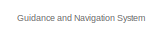
[diagram: root canvas - part 1/5, top left region]
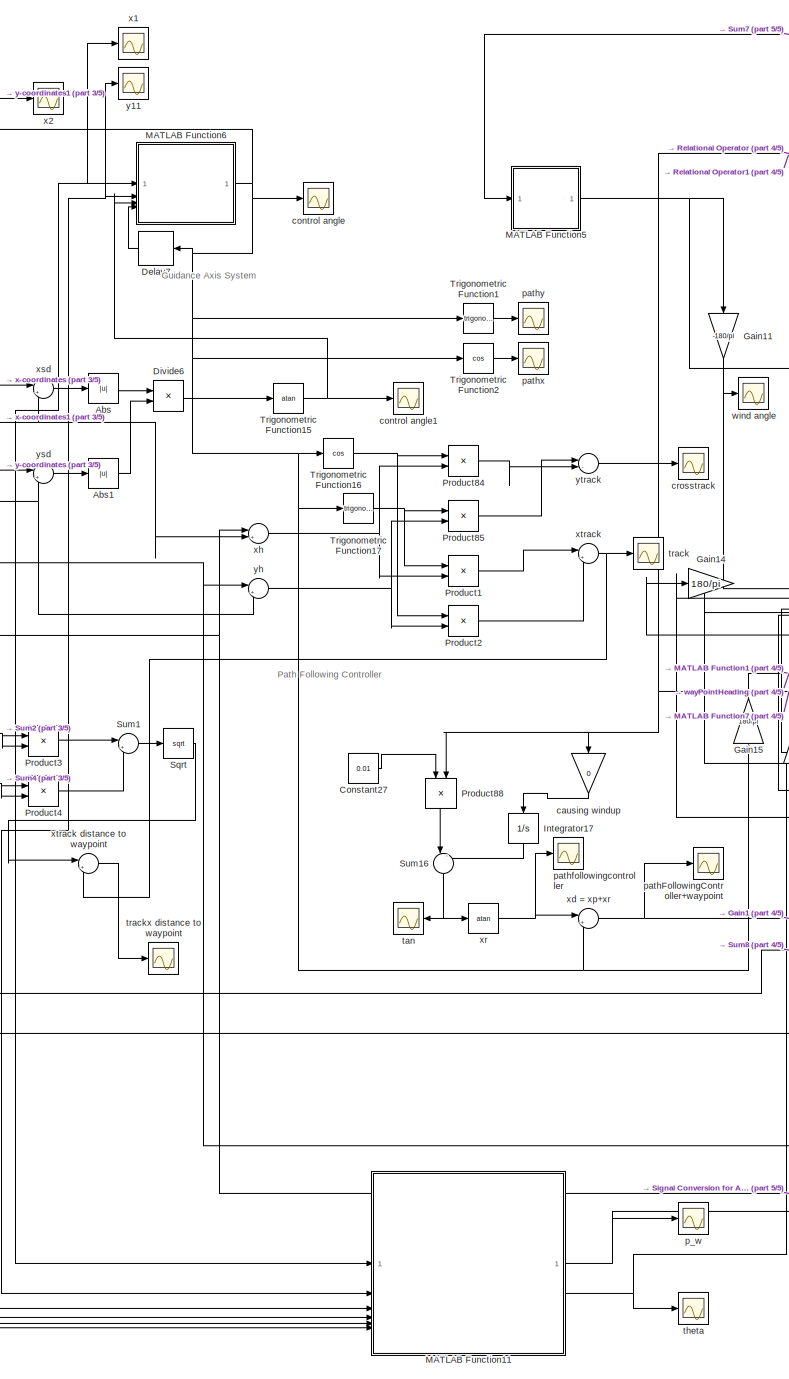
[diagram: root canvas - part 2/5, center side, full height]
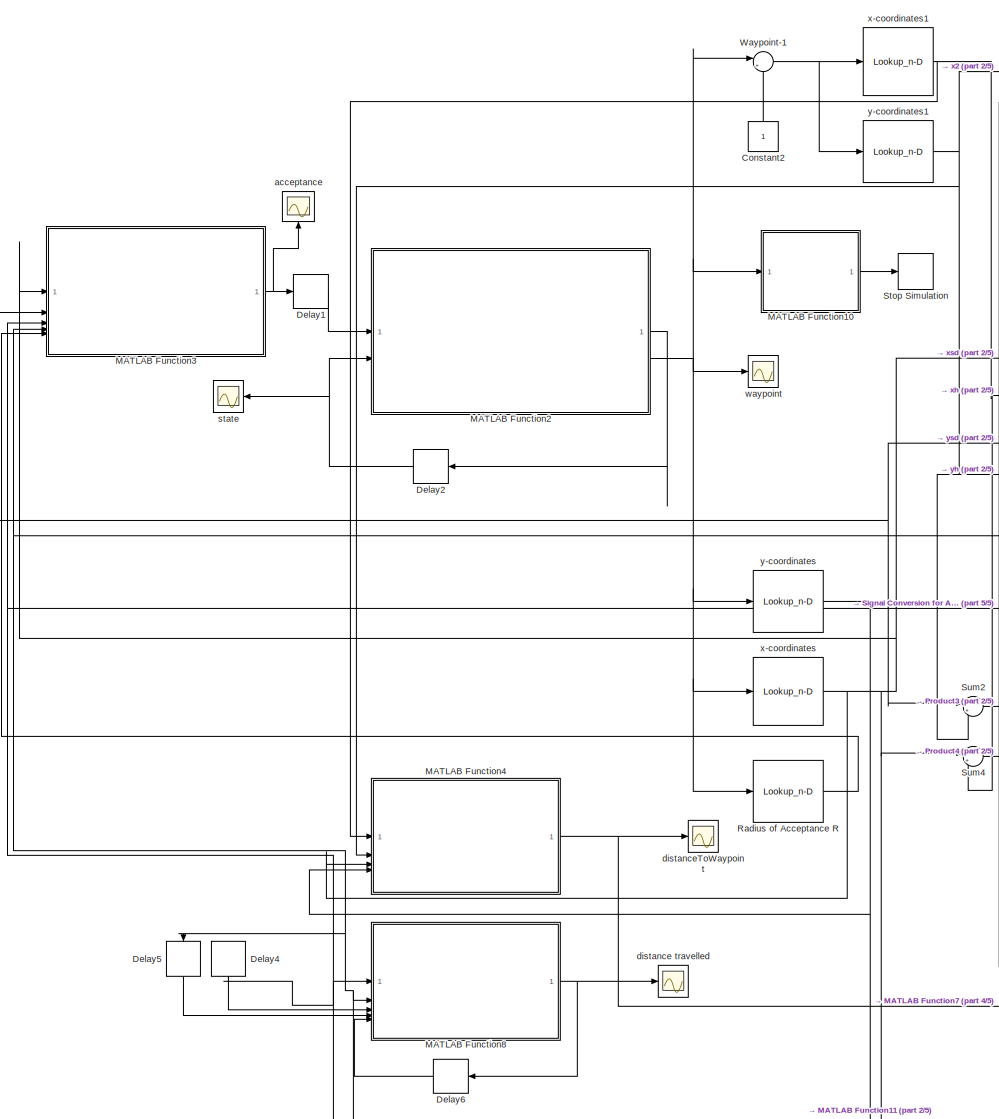
[diagram: root canvas - part 3/5, middle left region]
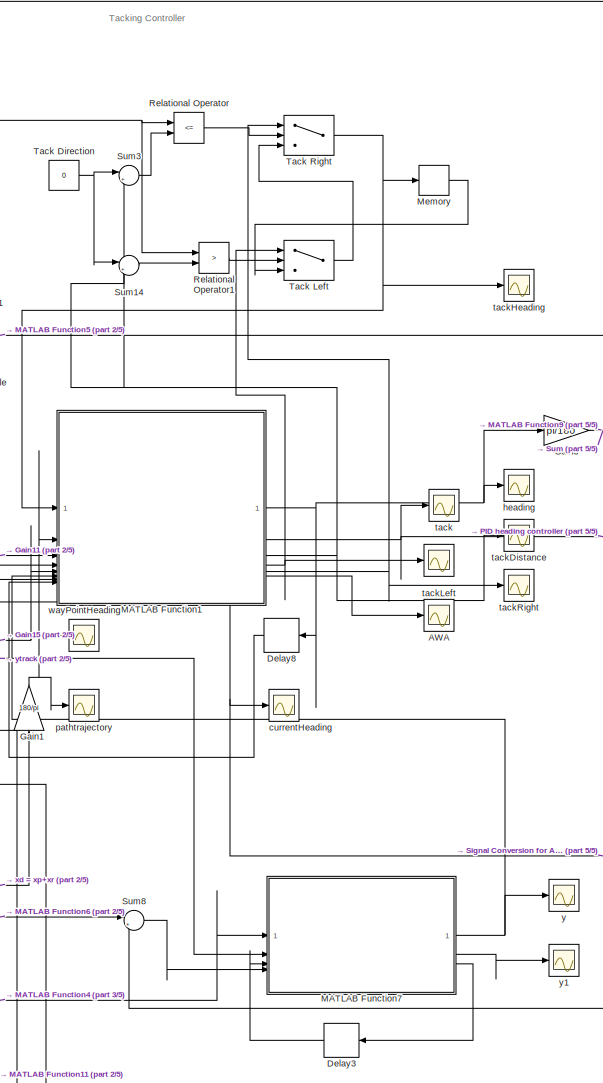
[diagram: root canvas - part 4/5, central region]
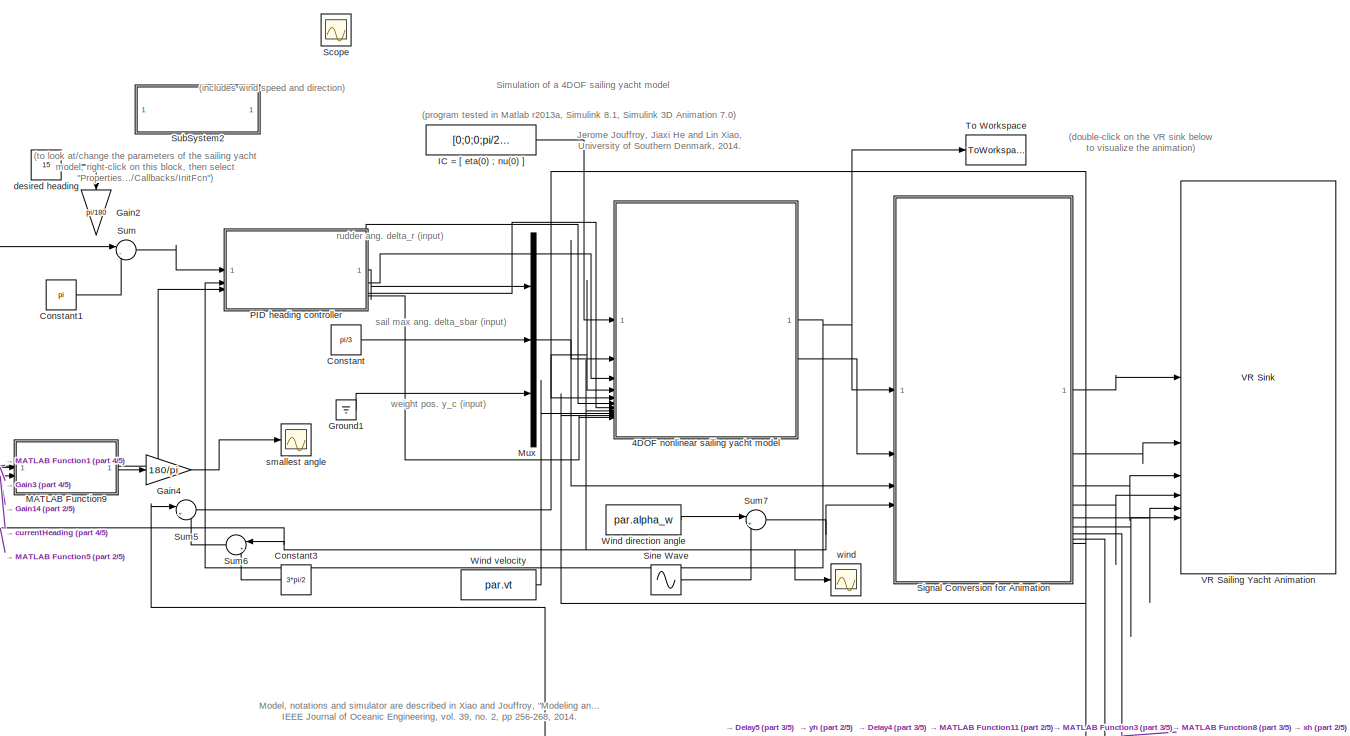
[diagram: root canvas - part 5/5, middle right region]
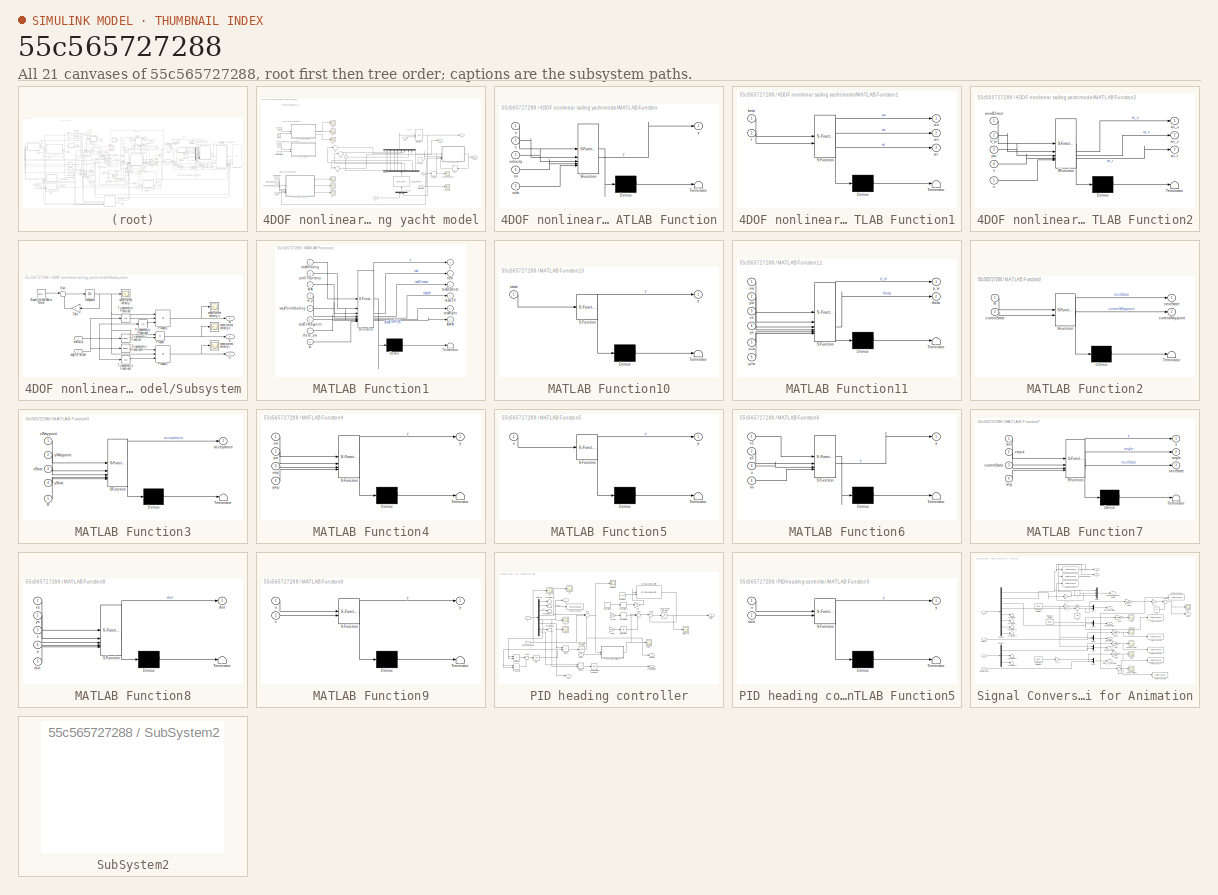
[diagram: thumbnail index - all 21 canvases of the model, root first then tree order]
MODEL slx_55c565727288
KIND model
CONFIG AbsTol = auto
CONFIG EnableMultiTasking = on
CONFIG FixedStep = 0.05
CONFIG MaxStep = auto
CONFIG MinStep = auto
CONFIG RelTol = 1e-3
CONFIG SampleTimeConstraint = Unconstrained
CONFIG SolverName = ode3
CONFIG StartTime = 0.0
CONFIG StopTime = 350
BLOCK [SubSystem] 4DOF nonlinear sailing yacht model
  NameLocation = top
BLOCK [Clock] 4DOF nonlinear sailing yacht model/Clock
  Decimation = 1
BLOCK [Constant] 4DOF nonlinear sailing yacht model/Constant
BLOCK [Delay] 4DOF nonlinear sailing yacht model/Delay
  DelayLength = 1
  InitialCondition = 0
  InputPortMap = u0
  NameLocation = top
BLOCK [Demux] 4DOF nonlinear sailing yacht model/Demux
  NameLocation = right
  Outputs = 9
BLOCK [Derivative] 4DOF nonlinear sailing yacht model/Derivative
BLOCK [Integrator] 4DOF nonlinear sailing yacht model/Integrator
  InitialCondition = [0;0;0;pi;1;0;0;0]
  InitialConditionSource = external
BLOCK [SubSystem] 4DOF nonlinear sailing yacht model/MATLAB Function
  ErrorFcn = Stateflow.Translate.translate
  LibrarySourceBlock = simulink/User-Defined\nFunctions/MATLAB Function
  PermitHierarchicalResolution = ExplicitOnly
  SFBlockType = MATLAB Function
  TreatAsAtomicUnit = on
BLOCK [Demux] 4DOF nonlinear sailing yacht model/MATLAB Function/ Demux 
  Outputs = 1
BLOCK [S-Function] 4DOF nonlinear sailing yacht model/MATLAB Function/ SFunction 
  EnableBusSupport = on
  FunctionName = sf_sfun
  PortCounts = [5 2]
  SFcnIsStateOwnerBlock = off
  SFunctionDeploymentMode = off
  Tag = Stateflow S-Function 10
BLOCK [Terminator] 4DOF nonlinear sailing yacht model/MATLAB Function/ Terminator 
BLOCK [Inport] 4DOF nonlinear sailing yacht model/MATLAB Function/s
  Port = 2
BLOCK [Inport] 4DOF nonlinear sailing yacht model/MATLAB Function/side
  Port = 5
BLOCK [Inport] 4DOF nonlinear sailing yacht model/MATLAB Function/su
  Port = 4
BLOCK [Inport] 4DOF nonlinear sailing yacht model/MATLAB Function/u
BLOCK [Inport] 4DOF nonlinear sailing yacht model/MATLAB Function/velocity
  Port = 3
BLOCK [Outport] 4DOF nonlinear sailing yacht model/MATLAB Function/y
BLOCK [SubSystem] 4DOF nonlinear sailing yacht model/MATLAB Function1
  ErrorFcn = Stateflow.Translate.translate
  LibrarySourceBlock = simulink/User-Defined\nFunctions/MATLAB Function
  PermitHierarchicalResolution = ExplicitOnly
  SFBlockType = MATLAB Function
  TreatAsAtomicUnit = on
BLOCK [Demux] 4DOF nonlinear sailing yacht model/MATLAB Function1/ Demux 
  Outputs = 1
BLOCK [S-Function] 4DOF nonlinear sailing yacht model/MATLAB Function1/ SFunction 
  EnableBusSupport = on
  FunctionName = sf_sfun
  PortCounts = [2 4]
  SFcnIsStateOwnerBlock = off
  SFunctionDeploymentMode = off
  Tag = Stateflow S-Function 13
BLOCK [Terminator] 4DOF nonlinear sailing yacht model/MATLAB Function1/ Terminator 
BLOCK [Inport] 4DOF nonlinear sailing yacht model/MATLAB Function1/beta
BLOCK [Inport] 4DOF nonlinear sailing yacht model/MATLAB Function1/t
  Port = 2
BLOCK [Outport] 4DOF nonlinear sailing yacht model/MATLAB Function1/wr
  Port = 3
BLOCK [Outport] 4DOF nonlinear sailing yacht model/MATLAB Function1/wu
BLOCK [Outport] 4DOF nonlinear sailing yacht model/MATLAB Function1/wv
  Port = 2
BLOCK [SubSystem] 4DOF nonlinear sailing yacht model/MATLAB Function2
  ErrorFcn = Stateflow.Translate.translate
  LibrarySourceBlock = simulink/User-Defined\nFunctions/MATLAB Function
  PermitHierarchicalResolution = ExplicitOnly
  SFBlockType = MATLAB Function
  TreatAsAtomicUnit = on
BLOCK [Demux] 4DOF nonlinear sailing yacht model/MATLAB Function2/ Demux 
  Outputs = 1
BLOCK [S-Function] 4DOF nonlinear sailing yacht model/MATLAB Function2/ SFunction 
  EnableBusSupport = on
  FunctionName = sf_sfun
  PortCounts = [5 4]
  SFcnIsStateOwnerBlock = off
  SFunctionDeploymentMode = off
  Tag = Stateflow S-Function 14
BLOCK [Terminator] 4DOF nonlinear sailing yacht model/MATLAB Function2/ Terminator 
BLOCK [Inport] 4DOF nonlinear sailing yacht model/MATLAB Function2/V_w
  Port = 2
BLOCK [Inport] 4DOF nonlinear sailing yacht model/MATLAB Function2/psi
  Port = 3
BLOCK [Inport] 4DOF nonlinear sailing yacht model/MATLAB Function2/u
  Port = 4
BLOCK [Inport] 4DOF nonlinear sailing yacht model/MATLAB Function2/v
  Port = 5
BLOCK [Outport] 4DOF nonlinear sailing yacht model/MATLAB Function2/wi_r
  Port = 3
BLOCK [Outport] 4DOF nonlinear sailing yacht model/MATLAB Function2/wi_u
BLOCK [Outport] 4DOF nonlinear sailing yacht model/MATLAB Function2/wi_v
  Port = 2
BLOCK [Inport] 4DOF nonlinear sailing yacht model/MATLAB Function2/windDirect
BLOCK [Mux] 4DOF nonlinear sailing yacht model/Mux
  DisplayOption = bar
  Inputs = 2
  NameLocation = right
BLOCK [Mux] 4DOF nonlinear sailing yacht model/Mux1
  DisplayOption = bar
  Inputs = 8
  NameLocation = right
BLOCK [SubSystem] 4DOF nonlinear sailing yacht model/Subsystem
BLOCK [Reference] 4DOF nonlinear sailing yacht model/Subsystem/Band-Limited White Noise  REF=simulink/Sources/Band-Limited
White Noise
  SourceBlock = simulink/Sources/Band-Limited\nWhite Noise
  SourceType = Band-Limited White Noise.
BLOCK [Gain] 4DOF nonlinear sailing yacht model/Subsystem/Gain
  NameLocation = top
BLOCK [Integrator] 4DOF nonlinear sailing yacht model/Subsystem/Integrator
BLOCK [Product] 4DOF nonlinear sailing yacht model/Subsystem/Product
BLOCK [Product] 4DOF nonlinear sailing yacht model/Subsystem/Product1
  Inputs = 3
BLOCK [Product] 4DOF nonlinear sailing yacht model/Subsystem/Product2
  Inputs = 3
BLOCK [Sum] 4DOF nonlinear sailing yacht model/Subsystem/Sum
  Inputs = |+-
BLOCK [Trigonometry] 4DOF nonlinear sailing yacht model/Subsystem/Trigonometric Function
BLOCK [Trigonometry] 4DOF nonlinear sailing yacht model/Subsystem/Trigonometric Function1
  Operator = cos
BLOCK [Trigonometry] 4DOF nonlinear sailing yacht model/Subsystem/Trigonometric Function2
  Operator = cos
BLOCK [Trigonometry] 4DOF nonlinear sailing yacht model/Subsystem/Trigonometric Function3
BLOCK [Trigonometry] 4DOF nonlinear sailing yacht model/Subsystem/Trigonometric Function4
  Operator = cos
BLOCK [Inport] 4DOF nonlinear sailing yacht model/Subsystem/angle of attack
  Port = 2
BLOCK [Scope] 4DOF nonlinear sailing yacht model/Subsystem/ocean current velocity
  Floating = off
  NameLocation = right
  NumInputPorts = 1
  ScopeSpecificationString = Simulink.scopes.TimeScopeBlockCfg('CurrentConfiguration', extmgr.ConfigurationSet(extmgr.Configuration('Core','General UI',true,'FigureColor',[1 1 1]),extmgr.Configuration('Core','Source UI',true),extmgr.Configuration('Sources','WiredSimulink',true,'DataLoggingVariableName','ScopeData1'),extmgr.Configuration('Visuals','Time Domain',true,'SerializedDisplays',{struct('MinYLimReal','-0.49913','MaxYLi...<+2411ch>
BLOCK [Scope] 4DOF nonlinear sailing yacht model/Subsystem/ocean current velocity r
  Floating = off
  NameLocation = right
  NumInputPorts = 1
  ScopeSpecificationString = Simulink.scopes.TimeScopeBlockCfg('CurrentConfiguration', extmgr.ConfigurationSet(extmgr.Configuration('Core','General UI',true,'FigureColor',[1 1 1]),extmgr.Configuration('Core','Source UI',true),extmgr.Configuration('Sources','WiredSimulink',true,'DataLoggingVariableName','ScopeData4'),extmgr.Configuration('Visuals','Time Domain',true,'SerializedDisplays',{struct('MinYLimReal','-0.02125','MaxYLi...<+2409ch>
BLOCK [Scope] 4DOF nonlinear sailing yacht model/Subsystem/ocean current velocity u
  Floating = off
  NameLocation = right
  NumInputPorts = 1
  ScopeSpecificationString = Simulink.scopes.TimeScopeBlockCfg('CurrentConfiguration', extmgr.ConfigurationSet(extmgr.Configuration('Core','General UI',true,'FigureColor',[1 1 1]),extmgr.Configuration('Core','Source UI',true),extmgr.Configuration('Sources','WiredSimulink',true,'DataLoggingVariableName','ScopeData2'),extmgr.Configuration('Visuals','Time Domain',true,'SerializedDisplays',{struct('MinYLimReal','-0.41528','MaxYLi...<+2438ch>
BLOCK [Scope] 4DOF nonlinear sailing yacht model/Subsystem/ocean current velocity v
  Floating = off
  NameLocation = right
  NumInputPorts = 1
  ScopeSpecificationString = Simulink.scopes.TimeScopeBlockCfg('CurrentConfiguration', extmgr.ConfigurationSet(extmgr.Configuration('Core','General UI',true,'FigureColor',[1 1 1]),extmgr.Configuration('Core','Source UI',true),extmgr.Configuration('Sources','WiredSimulink',true,'DataLoggingVariableName','ScopeData3'),extmgr.Configuration('Visuals','Time Domain',true,'SerializedDisplays',{struct('MinYLimReal','-0.02816','MaxYLi...<+2408ch>
BLOCK [Outport] 4DOF nonlinear sailing yacht model/Subsystem/rc
  Port = 3
BLOCK [Inport] 4DOF nonlinear sailing yacht model/Subsystem/side slip
BLOCK [Outport] 4DOF nonlinear sailing yacht model/Subsystem/uc
BLOCK [Outport] 4DOF nonlinear sailing yacht model/Subsystem/vc
  Port = 2
BLOCK [Inport] 4DOF nonlinear sailing yacht model/U
  Port = 2
BLOCK [Outport] 4DOF nonlinear sailing yacht model/X
BLOCK [Inport] 4DOF nonlinear sailing yacht model/X(0)
BLOCK [MATLABFcn] 4DOF nonlinear sailing yacht model/X_dot_ext=f(V_in)
  MATLABFcn = f
  NameLocation = left
  OutputDimensions = 9
BLOCK [Inport] 4DOF nonlinear sailing yacht model/angle of attack
  Port = 7
BLOCK [Inport] 4DOF nonlinear sailing yacht model/beta
  Port = 5
BLOCK [Scope] 4DOF nonlinear sailing yacht model/change in speed
  Floating = off
  NameLocation = right
  NumInputPorts = 1
  ScopeSpecificationString = Simulink.scopes.TimeScopeBlockCfg('CurrentConfiguration', extmgr.ConfigurationSet(extmgr.Configuration('Core','General UI',true,'FigureColor',[1 1 1]),extmgr.Configuration('Core','Source UI',true),extmgr.Configuration('Sources','WiredSimulink',true,'DataLoggingVariableName','ScopeData4'),extmgr.Configuration('Visuals','Time Domain',true,'SerializedDisplays',{struct('MinYLimReal','-0.6387','MaxYLim...<+2406ch>
BLOCK [Outport] 4DOF nonlinear sailing yacht model/delta_s
  Port = 2
BLOCK [Sum] 4DOF nonlinear sailing yacht model/pe
  Inputs = |++
  NameLocation = top
BLOCK [Outport] 4DOF nonlinear sailing yacht model/r_dot
  Port = 3
BLOCK [Sum] 4DOF nonlinear sailing yacht model/re
  Inputs = |++++
  NameLocation = top
BLOCK [Inport] 4DOF nonlinear sailing yacht model/sideslip
  Port = 6
BLOCK [Inport] 4DOF nonlinear sailing yacht model/u
  Port = 3
BLOCK [Sum] 4DOF nonlinear sailing yacht model/ue
  Inputs = |++++
  NameLocation = top
BLOCK [Inport] 4DOF nonlinear sailing yacht model/v
  NameLocation = left
  Port = 11
BLOCK [Sum] 4DOF nonlinear sailing yacht model/ve
  Inputs = |++++
  NameLocation = top
BLOCK [Inport] 4DOF nonlinear sailing yacht model/vessel heading
  NameLocation = left
  Port = 10
BLOCK [Scope] 4DOF nonlinear sailing yacht model/wi_r
  Floating = off
  NameLocation = right
  NumInputPorts = 1
  ScopeSpecificationString = Simulink.scopes.TimeScopeBlockCfg('CurrentConfiguration', extmgr.ConfigurationSet(extmgr.Configuration('Core','General UI',true,'FigureColor',[1 1 1]),extmgr.Configuration('Core','Source UI',true),extmgr.Configuration('Sources','WiredSimulink',true,'DataLoggingVariableName','ScopeData3'),extmgr.Configuration('Visuals','Time Domain',true,'SerializedDisplays',{struct('MinYLimReal','-0.13255','MaxYLi...<+2423ch>
BLOCK [Scope] 4DOF nonlinear sailing yacht model/wi_u
  Floating = off
  NameLocation = right
  NumInputPorts = 1
  ScopeSpecificationString = Simulink.scopes.TimeScopeBlockCfg('CurrentConfiguration', extmgr.ConfigurationSet(extmgr.Configuration('Core','General UI',true,'FigureColor',[1 1 1]),extmgr.Configuration('Core','Source UI',true),extmgr.Configuration('Sources','WiredSimulink',true,'DataLoggingVariableName','ScopeData1'),extmgr.Configuration('Visuals','Time Domain',true,'SerializedDisplays',{struct('MinYLimReal','-0.2043','MaxYLim...<+2419ch>
BLOCK [Scope] 4DOF nonlinear sailing yacht model/wi_v
  Floating = off
  NameLocation = right
  NumInputPorts = 1
  ScopeSpecificationString = Simulink.scopes.TimeScopeBlockCfg('CurrentConfiguration', extmgr.ConfigurationSet(extmgr.Configuration('Core','General UI',true,'FigureColor',[1 1 1]),extmgr.Configuration('Core','Source UI',true),extmgr.Configuration('Sources','WiredSimulink',true,'DataLoggingVariableName','ScopeData2'),extmgr.Configuration('Visuals','Time Domain',true,'SerializedDisplays',{struct('MinYLimReal','-0.75864','MaxYLi...<+2422ch>
BLOCK [Inport] 4DOF nonlinear sailing yacht model/wind Direction
  NameLocation = left
  Port = 8
BLOCK [Inport] 4DOF nonlinear sailing yacht model/wind side
  Port = 4
BLOCK [Inport] 4DOF nonlinear sailing yacht model/wind velocity
  NameLocation = left
  Port = 9
BLOCK [Scope] 4DOF nonlinear sailing yacht model/windSide
  Floating = off
  NameLocation = right
  NumInputPorts = 1
  ScopeSpecificationString = Simulink.scopes.TimeScopeBlockCfg('CurrentConfiguration', extmgr.ConfigurationSet(extmgr.Configuration('Core','General UI',true,'FigureColor',[1 1 1]),extmgr.Configuration('Core','Source UI',true),extmgr.Configuration('Sources','WiredSimulink',true,'DataLoggingVariableName','ScopeData5'),extmgr.Configuration('Visuals','Time Domain',true,'SerializedDisplays',{struct('MinYLimReal','-2.20957','MaxYLi...<+2412ch>
BLOCK [Scope] 4DOF nonlinear sailing yacht model/wr
  Floating = off
  NameLocation = right
  NumInputPorts = 1
  ScopeSpecificationString = Simulink.scopes.TimeScopeBlockCfg('CurrentConfiguration', extmgr.ConfigurationSet(extmgr.Configuration('Core','General UI',true,'FigureColor',[1 1 1]),extmgr.Configuration('Core','Source UI',true),extmgr.Configuration('Sources','WiredSimulink',true,'DataLoggingVariableName','ScopeData3'),extmgr.Configuration('Visuals','Time Domain',true,'SerializedDisplays',{struct('MinYLimReal','-0.01026','MaxYLi...<+2421ch>
BLOCK [Scope] 4DOF nonlinear sailing yacht model/wu
  Floating = off
  NameLocation = right
  NumInputPorts = 1
  ScopeSpecificationString = Simulink.scopes.TimeScopeBlockCfg('CurrentConfiguration', extmgr.ConfigurationSet(extmgr.Configuration('Core','General UI',true,'FigureColor',[1 1 1]),extmgr.Configuration('Core','Source UI',true),extmgr.Configuration('Sources','WiredSimulink',true,'DataLoggingVariableName','ScopeData2'),extmgr.Configuration('Visuals','Time Domain',true,'SerializedDisplays',{struct('MinYLimReal','-0.54671','MaxYLi...<+2417ch>
BLOCK [Scope] 4DOF nonlinear sailing yacht model/wv
  Floating = off
  NameLocation = right
  NumInputPorts = 1
  ScopeSpecificationString = Simulink.scopes.TimeScopeBlockCfg('CurrentConfiguration', extmgr.ConfigurationSet(extmgr.Configuration('Core','General UI',true,'FigureColor',[1 1 1]),extmgr.Configuration('Core','Source UI',true),extmgr.Configuration('Sources','WiredSimulink',true,'DataLoggingVariableName','ScopeData1'),extmgr.Configuration('Visuals','Time Domain',true,'SerializedDisplays',{struct('MinYLimReal','-0.54582','MaxYLi...<+2422ch>
BLOCK [Scope] AWA
  Floating = off
  NameLocation = right
  NumInputPorts = 1
  ScopeSpecificationString = Simulink.scopes.TimeScopeBlockCfg('CurrentConfiguration', extmgr.ConfigurationSet(extmgr.Configuration('Core','General UI',true,'FigureColor',[1 1 1]),extmgr.Configuration('Core','Source UI',true),extmgr.Configuration('Sources','WiredSimulink',true,'DataLoggingVariableName','ScopeData2'),extmgr.Configuration('Visuals','Time Domain',true,'SerializedDisplays',{struct('MinYLimReal','-226.87499','MaxY...<+2434ch>
BLOCK [Abs] Abs
  SaturateOnIntegerOverflow = off
BLOCK [Abs] Abs1
  SaturateOnIntegerOverflow = off
BLOCK [Constant] Constant
  Value = pi/3
BLOCK [Constant] Constant1
  Value = pi
BLOCK [Constant] Constant2
  NameLocation = right
BLOCK [Constant] Constant27
  Value = 0.01
BLOCK [Constant] Constant3
  NameLocation = top
  Value = 3*pi/2
BLOCK [Delay] Delay1
  DelayLength = 1
  InputPortMap = u0
  NameLocation = top
BLOCK [Delay] Delay2
  DelayLength = 1
  InputPortMap = u0
BLOCK [Delay] Delay3
  DelayLength = 1
  InputPortMap = u0
BLOCK [Delay] Delay4
  DelayLength = 1
  InputPortMap = u0
  NameLocation = right
BLOCK [Delay] Delay5
  DelayLength = 1
  InputPortMap = u0
  NameLocation = right
BLOCK [Delay] Delay6
  DelayLength = 1
  InputPortMap = u0
BLOCK [Delay] Delay7
  DelayLength = 1
  InputPortMap = u0
BLOCK [Delay] Delay8
  DelayLength = 1
  InputPortMap = u0
BLOCK [Product] Divide6
  Inputs = */
BLOCK [Gain] Gain1
  Gain = 180/pi
  NameLocation = right
BLOCK [Gain] Gain11
  Gain = -180/pi
  NameLocation = left
BLOCK [Gain] Gain14
  Gain = 180/pi
BLOCK [Gain] Gain15
  Gain = 180/pi
  NameLocation = right
BLOCK [Gain] Gain2
  Gain = pi/180
  NameLocation = left
BLOCK [Gain] Gain3
  Gain = pi/180
BLOCK [Gain] Gain4
  Gain = 180/pi
BLOCK [Ground] Ground1
BLOCK [Constant] IC = [ eta(0) ; nu(0) ]
  Value = [0;0;0;pi/2;3;0;0;0]
BLOCK [Integrator] Integrator17
  LimitOutput = on
  LowerSaturationLimit = -10
  NameLocation = left
  UpperSaturationLimit = 10
BLOCK [SubSystem] MATLAB Function1
  ErrorFcn = Stateflow.Translate.translate
  LibrarySourceBlock = simulink/User-Defined\nFunctions/MATLAB Function
  PermitHierarchicalResolution = ExplicitOnly
  SFBlockType = MATLAB Function
  TreatAsAtomicUnit = on
BLOCK [Demux] MATLAB Function1/ Demux 
  Outputs = 1
BLOCK [S-Function] MATLAB Function1/ SFunction 
  EnableBusSupport = on
  FunctionName = sf_sfun
  PortCounts = [8 7]
  SFcnIsStateOwnerBlock = off
  SFunctionDeploymentMode = off
  Tag = Stateflow S-Function 1
BLOCK [Terminator] MATLAB Function1/ Terminator 
BLOCK [Outport] MATLAB Function1/AWA
  Port = 6
BLOCK [Inport] MATLAB Function1/WA
  Port = 3
BLOCK [Inport] MATLAB Function1/pathTrajectory
  Port = 2
BLOCK [Outport] MATLAB Function1/tack
  Port = 2
BLOCK [Outport] MATLAB Function1/tackDistance
  Port = 3
BLOCK [Inport] MATLAB Function1/tackHeading
BLOCK [Outport] MATLAB Function1/tackLeft
  Port = 4
BLOCK [Outport] MATLAB Function1/tackRight
  Port = 5
BLOCK [Inport] MATLAB Function1/tackToWaypoint
  Port = 6
BLOCK [Inport] MATLAB Function1/theta_pw
  Port = 7
BLOCK [Inport] MATLAB Function1/w_p
  Port = 4
BLOCK [Inport] MATLAB Function1/wayPointHeading
  Port = 5
BLOCK [Outport] MATLAB Function1/y
BLOCK [Inport] MATLAB Function1/ys
  Port = 8
BLOCK [SubSystem] MATLAB Function10
  ErrorFcn = Stateflow.Translate.translate
  LibrarySourceBlock = simulink/User-Defined\nFunctions/MATLAB Function
  PermitHierarchicalResolution = ExplicitOnly
  SFBlockType = MATLAB Function
  TreatAsAtomicUnit = on
BLOCK [Demux] MATLAB Function10/ Demux 
  Outputs = 1
BLOCK [S-Function] MATLAB Function10/ SFunction 
  EnableBusSupport = on
  FunctionName = sf_sfun
  PortCounts = [1 2]
  SFcnIsStateOwnerBlock = off
  SFunctionDeploymentMode = off
  Tag = Stateflow S-Function 12
BLOCK [Terminator] MATLAB Function10/ Terminator 
BLOCK [Inport] MATLAB Function10/state
BLOCK [Outport] MATLAB Function10/y
BLOCK [SubSystem] MATLAB Function11
  ErrorFcn = Stateflow.Translate.translate
  LibrarySourceBlock = simulink/User-Defined\nFunctions/MATLAB Function
  PermitHierarchicalResolution = ExplicitOnly
  SFBlockType = MATLAB Function
  TreatAsAtomicUnit = on
BLOCK [Demux] MATLAB Function11/ Demux 
  Outputs = 1
BLOCK [S-Function] MATLAB Function11/ SFunction 
  EnableBusSupport = on
  FunctionName = sf_sfun
  PortCounts = [6 3]
  SFcnIsStateOwnerBlock = off
  SFunctionDeploymentMode = off
  Tag = Stateflow S-Function 15
BLOCK [Terminator] MATLAB Function11/ Terminator 
BLOCK [Outport] MATLAB Function11/p_w
BLOCK [Outport] MATLAB Function11/theta
  Port = 2
BLOCK [Inport] MATLAB Function11/xcw
  Port = 5
BLOCK [Inport] MATLAB Function11/xs
  Port = 3
BLOCK [Inport] MATLAB Function11/xw
BLOCK [Inport] MATLAB Function11/ycw
  Port = 6
BLOCK [Inport] MATLAB Function11/ys
  Port = 4
BLOCK [Inport] MATLAB Function11/yw
  Port = 2
BLOCK [SubSystem] MATLAB Function2
  ErrorFcn = Stateflow.Translate.translate
  LibrarySourceBlock = simulink/User-Defined\nFunctions/MATLAB Function
  PermitHierarchicalResolution = ExplicitOnly
  SFBlockType = MATLAB Function
  TreatAsAtomicUnit = on
BLOCK [Demux] MATLAB Function2/ Demux 
  Outputs = 1
BLOCK [S-Function] MATLAB Function2/ SFunction 
  EnableBusSupport = on
  FunctionName = sf_sfun
  PortCounts = [2 3]
  SFcnIsStateOwnerBlock = off
  SFunctionDeploymentMode = off
  Tag = Stateflow S-Function 3
BLOCK [Terminator] MATLAB Function2/ Terminator 
BLOCK [Inport] MATLAB Function2/R
BLOCK [Inport] MATLAB Function2/currentState
  Port = 2
BLOCK [Outport] MATLAB Function2/currentWaypoint
  Port = 2
BLOCK [Outport] MATLAB Function2/nextState
BLOCK [SubSystem] MATLAB Function3
  ErrorFcn = Stateflow.Translate.translate
  LibrarySourceBlock = simulink/User-Defined\nFunctions/MATLAB Function
  PermitHierarchicalResolution = ExplicitOnly
  SFBlockType = MATLAB Function
  TreatAsAtomicUnit = on
BLOCK [Demux] MATLAB Function3/ Demux 
  Outputs = 1
BLOCK [S-Function] MATLAB Function3/ SFunction 
  EnableBusSupport = on
  FunctionName = sf_sfun
  PortCounts = [5 2]
  SFcnIsStateOwnerBlock = off
  SFunctionDeploymentMode = off
  Tag = Stateflow S-Function 4
BLOCK [Terminator] MATLAB Function3/ Terminator 
BLOCK [Inport] MATLAB Function3/R
  Port = 5
BLOCK [Outport] MATLAB Function3/acceptance
BLOCK [Inport] MATLAB Function3/xBoat
  Port = 3
BLOCK [Inport] MATLAB Function3/xWaypoint
BLOCK [Inport] MATLAB Function3/yBoat
  Port = 4
BLOCK [Inport] MATLAB Function3/yWaypoint
  Port = 2
BLOCK [SubSystem] MATLAB Function4
  ErrorFcn = Stateflow.Translate.translate
  LibrarySourceBlock = simulink/User-Defined\nFunctions/MATLAB Function
  PermitHierarchicalResolution = ExplicitOnly
  SFBlockType = MATLAB Function
  TreatAsAtomicUnit = on
BLOCK [Demux] MATLAB Function4/ Demux 
  Outputs = 1
BLOCK [S-Function] MATLAB Function4/ SFunction 
  EnableBusSupport = on
  FunctionName = sf_sfun
  PortCounts = [4 2]
  SFcnIsStateOwnerBlock = off
  SFunctionDeploymentMode = off
  Tag = Stateflow S-Function 6
BLOCK [Terminator] MATLAB Function4/ Terminator 
BLOCK [Inport] MATLAB Function4/xw
BLOCK [Inport] MATLAB Function4/xwp
  Port = 3
BLOCK [Outport] MATLAB Function4/y
BLOCK [Inport] MATLAB Function4/yw
  Port = 2
BLOCK [Inport] MATLAB Function4/ywp
  Port = 4
BLOCK [SubSystem] MATLAB Function5
  ErrorFcn = Stateflow.Translate.translate
  LibrarySourceBlock = simulink/User-Defined\nFunctions/MATLAB Function
  PermitHierarchicalResolution = ExplicitOnly
  SFBlockType = MATLAB Function
  TreatAsAtomicUnit = on
BLOCK [Demux] MATLAB Function5/ Demux 
  Outputs = 1
BLOCK [S-Function] MATLAB Function5/ SFunction 
  EnableBusSupport = on
  FunctionName = sf_sfun
  PortCounts = [1 2]
  SFcnIsStateOwnerBlock = off
  SFunctionDeploymentMode = off
  Tag = Stateflow S-Function 2
BLOCK [Terminator] MATLAB Function5/ Terminator 
BLOCK [Inport] MATLAB Function5/u
BLOCK [Outport] MATLAB Function5/y
BLOCK [SubSystem] MATLAB Function6
  ErrorFcn = Stateflow.Translate.translate
  LibrarySourceBlock = simulink/User-Defined\nFunctions/MATLAB Function
  PermitHierarchicalResolution = ExplicitOnly
  SFBlockType = MATLAB Function
  TreatAsAtomicUnit = on
BLOCK [Demux] MATLAB Function6/ Demux 
  Outputs = 1
BLOCK [S-Function] MATLAB Function6/ SFunction 
  EnableBusSupport = on
  FunctionName = sf_sfun
  PortCounts = [4 2]
  SFcnIsStateOwnerBlock = off
  SFunctionDeploymentMode = off
  Tag = Stateflow S-Function 7
BLOCK [Terminator] MATLAB Function6/ Terminator 
BLOCK [Inport] MATLAB Function6/u
  Port = 3
BLOCK [Inport] MATLAB Function6/us
  Port = 4
BLOCK [Inport] MATLAB Function6/x1
BLOCK [Outport] MATLAB Function6/y
BLOCK [Inport] MATLAB Function6/y1
  Port = 2
BLOCK [SubSystem] MATLAB Function7
  ErrorFcn = Stateflow.Translate.translate
  LibrarySourceBlock = simulink/User-Defined\nFunctions/MATLAB Function
  PermitHierarchicalResolution = ExplicitOnly
  SFBlockType = MATLAB Function
  TreatAsAtomicUnit = on
BLOCK [Demux] MATLAB Function7/ Demux 
  Outputs = 1
BLOCK [S-Function] MATLAB Function7/ SFunction 
  EnableBusSupport = on
  FunctionName = sf_sfun
  PortCounts = [4 4]
  SFcnIsStateOwnerBlock = off
  SFunctionDeploymentMode = off
  Tag = Stateflow S-Function 8
BLOCK [Terminator] MATLAB Function7/ Terminator 
BLOCK [Inport] MATLAB Function7/ang
  Port = 4
BLOCK [Outport] MATLAB Function7/angle
  Port = 2
BLOCK [Inport] MATLAB Function7/currentState
  Port = 3
BLOCK [Inport] MATLAB Function7/dist
BLOCK [Outport] MATLAB Function7/nextState
  Port = 3
BLOCK [Inport] MATLAB Function7/xtrack
  Port = 2
BLOCK [Outport] MATLAB Function7/y
BLOCK [SubSystem] MATLAB Function8
  ErrorFcn = Stateflow.Translate.translate
  LibrarySourceBlock = simulink/User-Defined\nFunctions/MATLAB Function
  PermitHierarchicalResolution = ExplicitOnly
  SFBlockType = MATLAB Function
  TreatAsAtomicUnit = on
BLOCK [Demux] MATLAB Function8/ Demux 
  Outputs = 1
BLOCK [S-Function] MATLAB Function8/ SFunction 
  EnableBusSupport = on
  FunctionName = sf_sfun
  PortCounts = [5 2]
  SFcnIsStateOwnerBlock = off
  SFunctionDeploymentMode = off
  Tag = Stateflow S-Function 9
BLOCK [Terminator] MATLAB Function8/ Terminator 
BLOCK [Outport] MATLAB Function8/dist
BLOCK [Inport] MATLAB Function8/dist 
  Port = 5
BLOCK [Inport] MATLAB Function8/x
  Port = 3
BLOCK [Inport] MATLAB Function8/xs
BLOCK [Inport] MATLAB Function8/y
  Port = 4
BLOCK [Inport] MATLAB Function8/ys
  Port = 2
BLOCK [SubSystem] MATLAB Function9
  ErrorFcn = Stateflow.Translate.translate
  LibrarySourceBlock = simulink/User-Defined\nFunctions/MATLAB Function
  PermitHierarchicalResolution = ExplicitOnly
  SFBlockType = MATLAB Function
  TreatAsAtomicUnit = on
BLOCK [Demux] MATLAB Function9/ Demux 
  Outputs = 1
BLOCK [S-Function] MATLAB Function9/ SFunction 
  EnableBusSupport = on
  FunctionName = sf_sfun
  PortCounts = [2 2]
  SFcnIsStateOwnerBlock = off
  SFunctionDeploymentMode = off
  Tag = Stateflow S-Function 11
BLOCK [Terminator] MATLAB Function9/ Terminator 
BLOCK [Inport] MATLAB Function9/u
BLOCK [Inport] MATLAB Function9/v
  Port = 2
BLOCK [Outport] MATLAB Function9/y
BLOCK [Memory] Memory
BLOCK [Mux] Mux
  DisplayOption = bar
  Inputs = 3
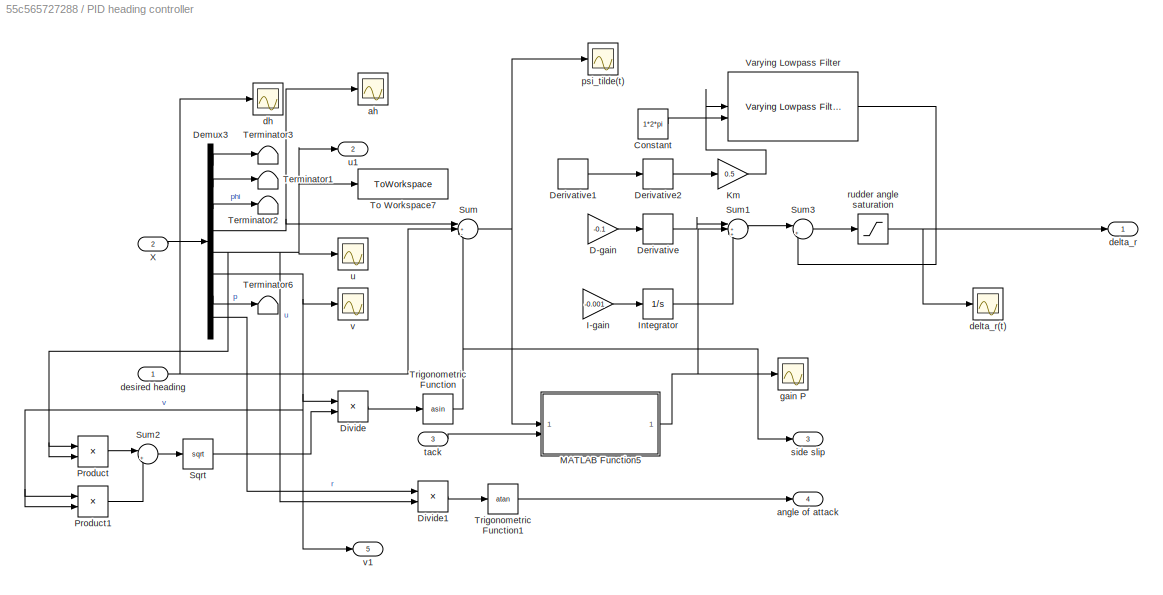
BLOCK [SubSystem] PID heading controller
  NameLocation = top
BLOCK [Constant] PID heading controller/Constant
  Value = 1*2*pi
BLOCK [Gain] PID heading controller/D-gain
  Gain = -0.1
BLOCK [Demux] PID heading controller/Demux3
  Outputs = 8
BLOCK [Derivative] PID heading controller/Derivative
BLOCK [Derivative] PID heading controller/Derivative1
BLOCK [Derivative] PID heading controller/Derivative2
BLOCK [Product] PID heading controller/Divide
  Inputs = */
BLOCK [Product] PID heading controller/Divide1
  Inputs = */
BLOCK [Gain] PID heading controller/I-gain
  Gain = -0.001
BLOCK [Integrator] PID heading controller/Integrator
BLOCK [Gain] PID heading controller/Km
  Gain = 0.5
BLOCK [SubSystem] PID heading controller/MATLAB Function5
  ErrorFcn = Stateflow.Translate.translate
  LibrarySourceBlock = simulink/User-Defined\nFunctions/MATLAB Function
  PermitHierarchicalResolution = ExplicitOnly
  SFBlockType = MATLAB Function
  TreatAsAtomicUnit = on
BLOCK [Demux] PID heading controller/MATLAB Function5/ Demux 
  Outputs = 1
BLOCK [S-Function] PID heading controller/MATLAB Function5/ SFunction 
  EnableBusSupport = on
  FunctionName = sf_sfun
  PortCounts = [2 2]
  SFcnIsStateOwnerBlock = off
  SFunctionDeploymentMode = off
  Tag = Stateflow S-Function 5
BLOCK [Terminator] PID heading controller/MATLAB Function5/ Terminator 
BLOCK [Inport] PID heading controller/MATLAB Function5/tack
  Port = 2
BLOCK [Inport] PID heading controller/MATLAB Function5/u
BLOCK [Outport] PID heading controller/MATLAB Function5/y
BLOCK [Product] PID heading controller/Product
BLOCK [Product] PID heading controller/Product1
BLOCK [Sqrt] PID heading controller/Sqrt
  IntermediateResultsDataTypeStr = double
BLOCK [Sum] PID heading controller/Sum
  Inputs = |+-+
  SaturateOnIntegerOverflow = on
BLOCK [Sum] PID heading controller/Sum1
  Inputs = |+++
  SaturateOnIntegerOverflow = on
BLOCK [Sum] PID heading controller/Sum2
  Inputs = |+-
  SaturateOnIntegerOverflow = on
BLOCK [Sum] PID heading controller/Sum3
  Inputs = |+-
  SaturateOnIntegerOverflow = on
BLOCK [Terminator] PID heading controller/Terminator1
BLOCK [Terminator] PID heading controller/Terminator2
BLOCK [Terminator] PID heading controller/Terminator3
BLOCK [Terminator] PID heading controller/Terminator6
BLOCK [ToWorkspace] PID heading controller/To Workspace7
  FixptAsFi = on
  MaxDataPoints = inf
  SampleTime = -1
  SaveFormat = Timeseries
  VariableName = u
BLOCK [Trigonometry] PID heading controller/Trigonometric Function
  Operator = asin
BLOCK [Trigonometry] PID heading controller/Trigonometric Function1
  Operator = atan
BLOCK [Reference] PID heading controller/Varying Lowpass Filter  REF=cstblocks/Linear Parameter Varying/Varying Lowpass Filter
  SourceBlock = cstblocks/Linear Parameter Varying/Varying Lowpass Filter
  SourceType = Varying Lowpass Filter
BLOCK [Inport] PID heading controller/X
  Port = 2
BLOCK [Scope] PID heading controller/ah
  Floating = off
  NumInputPorts = 1
  ScopeSpecificationString = Simulink.scopes.TimeScopeBlockCfg('CurrentConfiguration', extmgr.ConfigurationSet(extmgr.Configuration('Core','General UI',true,'FigureColor',[1 1 1]),extmgr.Configuration('Core','Source UI',true),extmgr.Configuration('Sources','WiredSimulink',true,'DataLoggingVariableName','ScopeData2','DataLoggingSaveFormat','StructureWithTime','DataLoggingDecimation','1','DataLoggingDecimateData',true),extmgr.C...<+1814ch>
BLOCK [Outport] PID heading controller/angle of attack
  Port = 4
BLOCK [Outport] PID heading controller/delta_r
BLOCK [Scope] PID heading controller/delta_r(t)
  Floating = off
  NumInputPorts = 1
  ScopeSpecificationString = Simulink.scopes.TimeScopeBlockCfg('CurrentConfiguration', extmgr.ConfigurationSet(extmgr.Configuration('Core','General UI',true,'FigureColor',[1 1 1]),extmgr.Configuration('Core','Source UI',true),extmgr.Configuration('Sources','WiredSimulink',true,'DataLoggingSaveFormat','StructureWithTime','DataLoggingDecimation','1','DataLoggingDecimateData',true),extmgr.Configuration('Visuals','Time Domain',tr...<+1781ch>
BLOCK [Inport] PID heading controller/desired heading
BLOCK [Scope] PID heading controller/dh
  Floating = off
  NumInputPorts = 1
  ScopeSpecificationString = Simulink.scopes.TimeScopeBlockCfg('CurrentConfiguration', extmgr.ConfigurationSet(extmgr.Configuration('Core','General UI',true,'FigureColor',[1 1 1]),extmgr.Configuration('Core','Source UI',true),extmgr.Configuration('Sources','WiredSimulink',true,'DataLoggingVariableName','ScopeData1','DataLoggingSaveFormat','StructureWithTime','DataLoggingDecimation','1','DataLoggingDecimateData',true),extmgr.C...<+1818ch>
BLOCK [Scope] PID heading controller/gain P
  Floating = off
  NumInputPorts = 1
  ScopeSpecificationString = Simulink.scopes.TimeScopeBlockCfg('CurrentConfiguration', extmgr.ConfigurationSet(extmgr.Configuration('Core','General UI',true,'FigureColor',[1 1 1]),extmgr.Configuration('Core','Source UI',true),extmgr.Configuration('Sources','WiredSimulink',true,'DataLoggingVariableName','ScopeData10','DataLoggingSaveFormat','StructureWithTime','DataLoggingDecimation','1','DataLoggingDecimateData',true),extmgr....<+1820ch>
BLOCK [Scope] PID heading controller/psi_tilde(t)
  Floating = off
  NumInputPorts = 1
  ScopeSpecificationString = Simulink.scopes.TimeScopeBlockCfg('CurrentConfiguration', extmgr.ConfigurationSet(extmgr.Configuration('Core','General UI',true,'FigureColor',[1 1 1]),extmgr.Configuration('Core','Source UI',true),extmgr.Configuration('Sources','WiredSimulink',true,'DataLoggingVariableName','ScopeData1','DataLoggingSaveFormat','StructureWithTime','DataLoggingDecimation','1','DataLoggingDecimateData',true),extmgr.C...<+1780ch>
BLOCK [Saturate] PID heading controller/rudder angle saturation
  LinearizeAsGain = off
  LowerLimit = -pi/6
  NameLocation = top
  UpperLimit = pi/6
BLOCK [Outport] PID heading controller/side slip
  Port = 3
BLOCK [Inport] PID heading controller/tack
  Port = 3
BLOCK [Scope] PID heading controller/u
  Floating = off
  NumInputPorts = 1
  ScopeSpecificationString = Simulink.scopes.TimeScopeBlockCfg('CurrentConfiguration', extmgr.ConfigurationSet(extmgr.Configuration('Core','General UI',true,'FigureColor',[1 1 1]),extmgr.Configuration('Core','Source UI',true),extmgr.Configuration('Sources','WiredSimulink',true,'DataLoggingVariableName','ScopeData8','DataLoggingSaveFormat','StructureWithTime','DataLoggingDecimation','1','DataLoggingDecimateData',true),extmgr.C...<+1800ch>
BLOCK [Outport] PID heading controller/u1
  Port = 2
BLOCK [Scope] PID heading controller/v
  Floating = off
  NumInputPorts = 1
  ScopeSpecificationString = Simulink.scopes.TimeScopeBlockCfg('CurrentConfiguration', extmgr.ConfigurationSet(extmgr.Configuration('Core','General UI',true,'FigureColor',[1 1 1]),extmgr.Configuration('Core','Source UI',true),extmgr.Configuration('Sources','WiredSimulink',true,'DataLoggingVariableName','ScopeData2','DataLoggingSaveFormat','StructureWithTime','DataLoggingDecimation','1','DataLoggingDecimateData',true),extmgr.C...<+1802ch>
BLOCK [Outport] PID heading controller/v1
  Port = 5
BLOCK [Product] Product1
BLOCK [Product] Product2
BLOCK [Product] Product3
BLOCK [Product] Product4
BLOCK [Product] Product84
BLOCK [Product] Product85
BLOCK [Product] Product88
  NameLocation = left
BLOCK [Lookup_n-D] Radius of Acceptance R
  BreakpointsForDimension1 = Waypoints.number
  ExtrapMethod = Cubic spline
  InputPortMap = u0
  InternalRulePriority = Speed
  InterpMethod = Cubic spline
  NameLocation = top
  NumberOfTableDimensions = 1
  RndMeth = Simplest
  Table = Waypoints.R
BLOCK [RelationalOperator] Relational Operator
  InputSameDT = off
  Operator = <=
  OutDataTypeStr = boolean
  RndMeth = Simplest
BLOCK [RelationalOperator] Relational Operator1
  InputSameDT = off
  Operator = >
  OutDataTypeStr = boolean
  RndMeth = Simplest
BLOCK [Scope] Scope
  Floating = off
  IOType = viewer
  NumInputPorts = 1
  ScopeSpecificationString = Simulink.scopes.TimeScopeBlockCfg('CurrentConfiguration', extmgr.ConfigurationSet(extmgr.Configuration('Core','General UI',true),extmgr.Configuration('Core','Source UI',true),extmgr.Configuration('Sources','WiredSimulink',true,'DataLoggingVariableName','ScopeData3'),extmgr.Configuration('Visuals','Time Domain',true,'SerializedDisplays',{struct('MinYLimReal','-5.98039','MaxYLimReal','4.48306','YLab...<+1366ch>
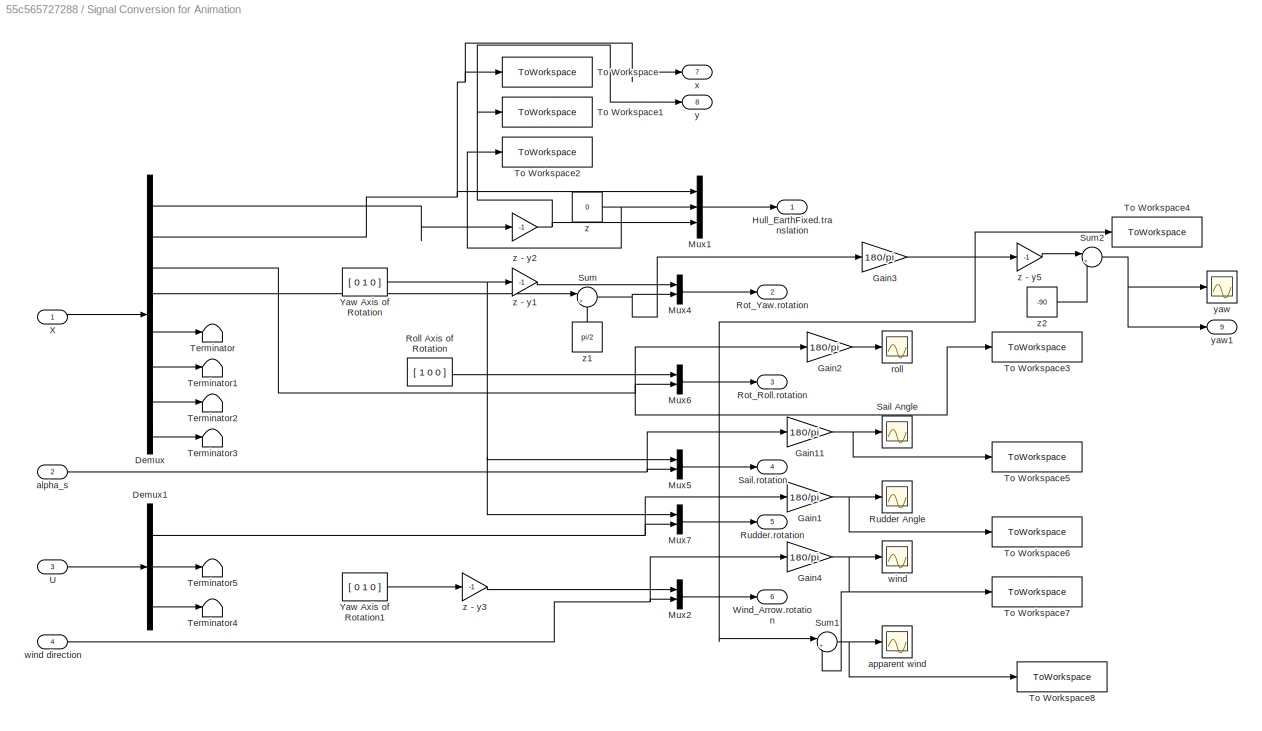
BLOCK [SubSystem] Signal Conversion for Animation
BLOCK [Demux] Signal Conversion for Animation/Demux
  Outputs = 8
BLOCK [Demux] Signal Conversion for Animation/Demux1
  Outputs = 3
BLOCK [Gain] Signal Conversion for Animation/Gain1
  Gain = 180/pi
BLOCK [Gain] Signal Conversion for Animation/Gain11
  Gain = 180/pi
BLOCK [Gain] Signal Conversion for Animation/Gain2
  Gain = 180/pi
BLOCK [Gain] Signal Conversion for Animation/Gain3
  Gain = 180/pi
BLOCK [Gain] Signal Conversion for Animation/Gain4
  Gain = 180/pi
BLOCK [Outport] Signal Conversion for Animation/Hull_EarthFixed.translation
BLOCK [Mux] Signal Conversion for Animation/Mux1
  DisplayOption = bar
  Inputs = 3
BLOCK [Mux] Signal Conversion for Animation/Mux2
  DisplayOption = bar
  Inputs = 2
BLOCK [Mux] Signal Conversion for Animation/Mux4
  DisplayOption = bar
  Inputs = 2
BLOCK [Mux] Signal Conversion for Animation/Mux5
  DisplayOption = bar
  Inputs = 2
BLOCK [Mux] Signal Conversion for Animation/Mux6
  DisplayOption = bar
  Inputs = 2
BLOCK [Mux] Signal Conversion for Animation/Mux7
  DisplayOption = bar
  Inputs = 2
BLOCK [Constant] Signal Conversion for Animation/Roll Axis of Rotation
  NameLocation = top
  Value = [ 1 0 0 ]
BLOCK [Outport] Signal Conversion for Animation/Rot_Roll.rotation
  Port = 3
BLOCK [Outport] Signal Conversion for Animation/Rot_Yaw.rotation
  Port = 2
BLOCK [Scope] Signal Conversion for Animation/Rudder Angle
  Floating = off
  NameLocation = right
  NumInputPorts = 1
  ScopeSpecificationString = Simulink.scopes.TimeScopeBlockCfg('CurrentConfiguration', extmgr.ConfigurationSet(extmgr.Configuration('Core','General UI',true,'FigureColor',[1 1 1]),extmgr.Configuration('Core','Source UI',true),extmgr.Configuration('Sources','WiredSimulink',true,'DataLoggingVariableName','ScopeData6'),extmgr.Configuration('Visuals','Time Domain',true,'SerializedDisplays',{struct('MinYLimReal','-37.5','MaxYLimRe...<+2415ch>
BLOCK [Outport] Signal Conversion for Animation/Rudder.rotation
  Port = 5
BLOCK [Scope] Signal Conversion for Animation/Sail Angle
  Floating = off
  NameLocation = right
  NumInputPorts = 1
  ScopeSpecificationString = Simulink.scopes.TimeScopeBlockCfg('CurrentConfiguration', extmgr.ConfigurationSet(extmgr.Configuration('Core','General UI',true,'FigureColor',[1 1 1]),extmgr.Configuration('Core','Source UI',true),extmgr.Configuration('Sources','WiredSimulink',true,'DataLoggingVariableName','ScopeData2'),extmgr.Configuration('Visuals','Time Domain',true,'SerializedDisplays',{struct('MinYLimReal','-75.00000','MaxYL...<+2439ch>
BLOCK [Outport] Signal Conversion for Animation/Sail.rotation
  Port = 4
BLOCK [Sum] Signal Conversion for Animation/Sum
  Inputs = |+-
  SaturateOnIntegerOverflow = on
BLOCK [Sum] Signal Conversion for Animation/Sum1
  Inputs = |+-
  SaturateOnIntegerOverflow = on
BLOCK [Sum] Signal Conversion for Animation/Sum2
  Inputs = |+-
  SaturateOnIntegerOverflow = on
BLOCK [Terminator] Signal Conversion for Animation/Terminator
BLOCK [Terminator] Signal Conversion for Animation/Terminator1
BLOCK [Terminator] Signal Conversion for Animation/Terminator2
BLOCK [Terminator] Signal Conversion for Animation/Terminator3
BLOCK [Terminator] Signal Conversion for Animation/Terminator4
BLOCK [Terminator] Signal Conversion for Animation/Terminator5
BLOCK [ToWorkspace] Signal Conversion for Animation/To Workspace
  FixptAsFi = on
  MaxDataPoints = inf
  SampleTime = -1
  SaveFormat = Timeseries
  VariableName = x
BLOCK [ToWorkspace] Signal Conversion for Animation/To Workspace1
  FixptAsFi = on
  MaxDataPoints = inf
  SampleTime = -1
  SaveFormat = Timeseries
  VariableName = y
BLOCK [ToWorkspace] Signal Conversion for Animation/To Workspace2
  FixptAsFi = on
  MaxDataPoints = inf
  SampleTime = -1
  SaveFormat = Timeseries
  VariableName = z
BLOCK [ToWorkspace] Signal Conversion for Animation/To Workspace3
  FixptAsFi = on
  MaxDataPoints = inf
  SampleTime = -1
  SaveFormat = Timeseries
  VariableName = roll
BLOCK [ToWorkspace] Signal Conversion for Animation/To Workspace4
  FixptAsFi = on
  MaxDataPoints = inf
  SampleTime = -1
  SaveFormat = Timeseries
  VariableName = yaw
BLOCK [ToWorkspace] Signal Conversion for Animation/To Workspace5
  FixptAsFi = on
  MaxDataPoints = inf
  SampleTime = -1
  SaveFormat = Timeseries
  VariableName = sail
BLOCK [ToWorkspace] Signal Conversion for Animation/To Workspace6
  FixptAsFi = on
  MaxDataPoints = inf
  SampleTime = -1
  SaveFormat = Timeseries
  VariableName = rudder
BLOCK [ToWorkspace] Signal Conversion for Animation/To Workspace7
  FixptAsFi = on
  MaxDataPoints = inf
  SampleTime = -1
  SaveFormat = Timeseries
  VariableName = wind
BLOCK [ToWorkspace] Signal Conversion for Animation/To Workspace8
  FixptAsFi = on
  MaxDataPoints = inf
  SampleTime = -1
  SaveFormat = Timeseries
  VariableName = apparentWind
BLOCK [Inport] Signal Conversion for Animation/U
  Port = 3
BLOCK [Outport] Signal Conversion for Animation/Wind_Arrow.rotation
  Port = 6
BLOCK [Inport] Signal Conversion for Animation/X
BLOCK [Constant] Signal Conversion for Animation/Yaw Axis of Rotation
  NameLocation = top
  Value = [ 0 1 0 ]
BLOCK [Constant] Signal Conversion for Animation/Yaw Axis of Rotation1
  NameLocation = top
  Value = [ 0 1 0 ]
BLOCK [Inport] Signal Conversion for Animation/alpha_s
  Port = 2
BLOCK [Scope] Signal Conversion for Animation/apparent wind
  Floating = off
  NameLocation = right
  NumInputPorts = 1
  ScopeSpecificationString = Simulink.scopes.TimeScopeBlockCfg('CurrentConfiguration', extmgr.ConfigurationSet(extmgr.Configuration('Core','General UI',true,'FigureColor',[1 1 1]),extmgr.Configuration('Core','Source UI',true),extmgr.Configuration('Sources','WiredSimulink',true,'DataLoggingVariableName','ScopeData9'),extmgr.Configuration('Visuals','Time Domain',true,'SerializedDisplays',{struct('MinYLimReal','-342.51822','MaxY...<+2426ch>
BLOCK [Scope] Signal Conversion for Animation/roll
  Floating = off
  NameLocation = right
  NumInputPorts = 1
  ScopeSpecificationString = Simulink.scopes.TimeScopeBlockCfg('CurrentConfiguration', extmgr.ConfigurationSet(extmgr.Configuration('Core','General UI',true,'FigureColor',[1 1 1]),extmgr.Configuration('Core','Source UI',true),extmgr.Configuration('Sources','WiredSimulink',true,'DataLoggingVariableName','ScopeData5'),extmgr.Configuration('Visuals','Time Domain',true,'SerializedDisplays',{struct('MinYLimReal','-34.53429','MaxYL...<+2438ch>
BLOCK [Scope] Signal Conversion for Animation/wind
  Floating = off
  NameLocation = right
  NumInputPorts = 1
  ScopeSpecificationString = Simulink.scopes.TimeScopeBlockCfg('CurrentConfiguration', extmgr.ConfigurationSet(extmgr.Configuration('Core','General UI',true,'FigureColor',[1 1 1]),extmgr.Configuration('Core','Source UI',true),extmgr.Configuration('Sources','WiredSimulink',true,'DataLoggingVariableName','ScopeData7'),extmgr.Configuration('Visuals','Time Domain',true,'SerializedDisplays',{struct('MinYLimReal','61.87502','MaxYLi...<+2453ch>
BLOCK [Inport] Signal Conversion for Animation/wind direction
  Port = 4
BLOCK [Outport] Signal Conversion for Animation/x
  Port = 7
BLOCK [Outport] Signal Conversion for Animation/y
  Port = 8
BLOCK [Scope] Signal Conversion for Animation/yaw
  Floating = off
  NameLocation = right
  NumInputPorts = 1
  ScopeSpecificationString = Simulink.scopes.TimeScopeBlockCfg('CurrentConfiguration', extmgr.ConfigurationSet(extmgr.Configuration('Core','General UI',true,'FigureColor',[1 1 1]),extmgr.Configuration('Core','Source UI',true),extmgr.Configuration('Sources','WiredSimulink',true,'DataLoggingVariableName','ScopeData4'),extmgr.Configuration('Visuals','Time Domain',true,'SerializedDisplays',{struct('MinYLimReal','-353.89018','MaxY...<+2435ch>
BLOCK [Outport] Signal Conversion for Animation/yaw1
  Port = 9
BLOCK [Constant] Signal Conversion for Animation/z
  Value = 0
BLOCK [Gain] Signal Conversion for Animation/z - y1
  Gain = -1
  NameLocation = top
BLOCK [Gain] Signal Conversion for Animation/z - y2
  Gain = -1
  NameLocation = top
BLOCK [Gain] Signal Conversion for Animation/z - y3
  Gain = -1
  NameLocation = top
BLOCK [Gain] Signal Conversion for Animation/z - y5
  Gain = -1
  NameLocation = top
BLOCK [Constant] Signal Conversion for Animation/z1
  NameLocation = right
  Value = pi/2
BLOCK [Constant] Signal Conversion for Animation/z2
  Value = -90
BLOCK [Sin] Sine Wave
  Amplitude = 0
  Frequency = 0.1
  SampleTime = 0
BLOCK [Sqrt] Sqrt
BLOCK [Stop] Stop Simulation
BLOCK [SubSystem] SubSystem2
  InitFcn = global par\npar.m = 25900;                         % (kg),mass of the vehicle\npar.Ixx = 133690;          \npar.Izz = 24760;      \npar.Ixz = 2180;                        % moment of inertia\npar.a11 = 970;   \npar.a22 = 17430; \npar.a44 = 106500;\npar.a66 = 101650;\npar.a24 = -13160;\npar.a26 = -6190; \npar.a46 = 4730;                        % (kg),added mass coef.\n\npar.vt = 12;                           % ...<+1847ch>
BLOCK [Sum] Sum
  Inputs = |-+
  SaturateOnIntegerOverflow = on
BLOCK [Sum] Sum1
  Inputs = |++
BLOCK [Sum] Sum14
  Inputs = |++
BLOCK [Sum] Sum16
  Inputs = |--
  NameLocation = left
BLOCK [Sum] Sum2
  Inputs = |+-
BLOCK [Sum] Sum3
  Inputs = |+-
BLOCK [Sum] Sum4
  Inputs = |+-
BLOCK [Sum] Sum5
  Inputs = |+-
  SaturateOnIntegerOverflow = on
BLOCK [Sum] Sum6
  Inputs = |+-
  NameLocation = top
  SaturateOnIntegerOverflow = on
BLOCK [Sum] Sum7
  Inputs = |+-
  SaturateOnIntegerOverflow = on
BLOCK [Sum] Sum8
  Inputs = |+-
BLOCK [Constant] Tack Direction
  NameLocation = top
  Value = 0
BLOCK [Switch] Tack Left
  Criteria = u2 > Threshold
  InputSameDT = off
  SaturateOnIntegerOverflow = off
BLOCK [Switch] Tack Right
  Criteria = u2 > Threshold
  InputSameDT = off
  SaturateOnIntegerOverflow = off
BLOCK [ToWorkspace] To Workspace
  MaxDataPoints = inf
  SampleTime = -1
  SaveFormat = Structure With Time
  VariableName = X
BLOCK [Trigonometry] Trigonometric Function1
BLOCK [Trigonometry] Trigonometric Function15
  Operator = atan
BLOCK [Trigonometry] Trigonometric Function16
  Operator = cos
BLOCK [Trigonometry] Trigonometric Function17
BLOCK [Trigonometry] Trigonometric Function2
  Operator = cos
BLOCK [Reference] VR Sailing Yacht Animation  REF=vrlib/VR Sink
  InstantiateOnLoad = on
  SourceBlock = vrlib/VR Sink
  SourceType = Virtual Reality Sink
BLOCK [Sum] Waypoint-1
  Inputs = |+-
  NameLocation = top
BLOCK [Constant] Wind direction angle
  NameLocation = top
  Value = par.alpha_w
BLOCK [Constant] Wind velocity
  NameLocation = top
  Value = par.vt
BLOCK [Scope] acceptance
  Floating = off
  NameLocation = top
  NumInputPorts = 1
  ScopeSpecificationString = Simulink.scopes.TimeScopeBlockCfg('CurrentConfiguration', extmgr.ConfigurationSet(extmgr.Configuration('Core','General UI',true,'FigureColor',[1 1 1]),extmgr.Configuration('Core','Source UI',true),extmgr.Configuration('Sources','WiredSimulink',true,'DataLoggingVariableName','ScopeData22'),extmgr.Configuration('Visuals','Time Domain',true,'SerializedDisplays',{struct('MinYLimReal','-0.125','MaxYLim...<+2407ch>
BLOCK [Gain] causing windup
  Gain = 0
  NameLocation = right
BLOCK [Scope] control angle
  Floating = off
  NameLocation = right
  NumInputPorts = 1
  ScopeSpecificationString = Simulink.scopes.TimeScopeBlockCfg('CurrentConfiguration', extmgr.ConfigurationSet(extmgr.Configuration('Core','General UI',true,'FigureColor',[1 1 1]),extmgr.Configuration('Core','Source UI',true),extmgr.Configuration('Sources','WiredSimulink',true,'DataLoggingVariableName','ScopeData10'),extmgr.Configuration('Visuals','Time Domain',true,'SerializedDisplays',{struct('MinYLimReal','-2.15984','MaxYL...<+2418ch>
BLOCK [Scope] control angle1
  Floating = off
  NameLocation = right
  NumInputPorts = 1
  ScopeSpecificationString = Simulink.scopes.TimeScopeBlockCfg('CurrentConfiguration', extmgr.ConfigurationSet(extmgr.Configuration('Core','General UI',true,'FigureColor',[1 1 1]),extmgr.Configuration('Core','Source UI',true),extmgr.Configuration('Sources','WiredSimulink',true,'DataLoggingVariableName','ScopeData18'),extmgr.Configuration('Visuals','Time Domain',true,'SerializedDisplays',{struct('MinYLimReal','0.28847','MaxYLi...<+2451ch>
BLOCK [Scope] crosstrack
  Floating = off
  NameLocation = right
  NumInputPorts = 1
  ScopeSpecificationString = Simulink.scopes.TimeScopeBlockCfg('CurrentConfiguration', extmgr.ConfigurationSet(extmgr.Configuration('Core','General UI',true,'FigureColor',[1 1 1]),extmgr.Configuration('Core','Source UI',true),extmgr.Configuration('Sources','WiredSimulink',true,'DataLoggingVariableName','ScopeData11'),extmgr.Configuration('Visuals','Time Domain',true,'SerializedDisplays',{struct('MinYLimReal','-15.51143','MaxY...<+2418ch>
BLOCK [Scope] currentHeading
  Floating = off
  NameLocation = right
  NumInputPorts = 1
  ScopeSpecificationString = Simulink.scopes.TimeScopeBlockCfg('CurrentConfiguration', extmgr.ConfigurationSet(extmgr.Configuration('Core','General UI',true,'FigureColor',[1 1 1]),extmgr.Configuration('Core','Source UI',true),extmgr.Configuration('Sources','WiredSimulink',true,'DataLoggingVariableName','ScopeData9'),extmgr.Configuration('Visuals','Time Domain',true,'SerializedDisplays',{struct('MinYLimReal','-0.43192','MaxYLi...<+2436ch>
BLOCK [Constant] desired heading
  NameLocation = top
  Value = 15
BLOCK [Scope] distance travelled
  Floating = off
  NameLocation = right
  NumInputPorts = 1
  ScopeSpecificationString = Simulink.scopes.TimeScopeBlockCfg('CurrentConfiguration', extmgr.ConfigurationSet(extmgr.Configuration('Core','General UI',true,'FigureColor',[1 1 1]),extmgr.Configuration('Core','Source UI',true),extmgr.Configuration('Sources','WiredSimulink',true,'DataLoggingVariableName','ScopeData1'),extmgr.Configuration('Visuals','Time Domain',true,'SerializedDisplays',{struct('MinYLimReal','-191.88155','MaxY...<+2436ch>
BLOCK [Scope] distanceToWaypoint
  Floating = off
  NameLocation = right
  NumInputPorts = 1
  ScopeSpecificationString = Simulink.scopes.TimeScopeBlockCfg('CurrentConfiguration', extmgr.ConfigurationSet(extmgr.Configuration('Core','General UI',true,'FigureColor',[1 1 1]),extmgr.Configuration('Core','Source UI',true),extmgr.Configuration('Sources','WiredSimulink',true,'DataLoggingVariableName','ScopeData11'),extmgr.Configuration('Visuals','Time Domain',true,'SerializedDisplays',{struct('MinYLimReal','-24.83004','MaxY...<+2426ch>
BLOCK [Scope] heading
  Floating = off
  NameLocation = right
  NumInputPorts = 1
  ScopeSpecificationString = Simulink.scopes.TimeScopeBlockCfg('CurrentConfiguration', extmgr.ConfigurationSet(extmgr.Configuration('Core','General UI',true,'FigureColor',[1 1 1]),extmgr.Configuration('Core','Source UI',true),extmgr.Configuration('Sources','WiredSimulink',true,'DataLoggingVariableName','ScopeData3'),extmgr.Configuration('Visuals','Time Domain',true,'SerializedDisplays',{struct('MinYLimReal','53.26681','MaxYLi...<+2430ch>
BLOCK [Scope] p_w
  Floating = off
  NameLocation = right
  NumInputPorts = 1
  ScopeSpecificationString = Simulink.scopes.TimeScopeBlockCfg('CurrentConfiguration', extmgr.ConfigurationSet(extmgr.Configuration('Core','General UI',true,'FigureColor',[1 1 1]),extmgr.Configuration('Core','Source UI',true),extmgr.Configuration('Sources','WiredSimulink',true,'DataLoggingVariableName','ScopeData4'),extmgr.Configuration('Visuals','Time Domain',true,'SerializedDisplays',{struct('MinYLimReal','-0.125','MaxYLimR...<+2409ch>
BLOCK [Scope] pathFollowingController+waypoint 
  Floating = off
  NameLocation = right
  NumInputPorts = 1
  ScopeSpecificationString = Simulink.scopes.TimeScopeBlockCfg('CurrentConfiguration', extmgr.ConfigurationSet(extmgr.Configuration('Core','General UI',true,'FigureColor',[1 1 1]),extmgr.Configuration('Core','Source UI',true),extmgr.Configuration('Sources','WiredSimulink',true,'DataLoggingVariableName','ScopeData15'),extmgr.Configuration('Visuals','Time Domain',true,'SerializedDisplays',{struct('MinYLimReal','1.05732','MaxYLi...<+2436ch>
BLOCK [Scope] pathfollowingcontroller
  Floating = off
  NameLocation = right
  NumInputPorts = 1
  ScopeSpecificationString = Simulink.scopes.TimeScopeBlockCfg('CurrentConfiguration', extmgr.ConfigurationSet(extmgr.Configuration('Core','General UI',true,'FigureColor',[1 1 1]),extmgr.Configuration('Core','Source UI',true),extmgr.Configuration('Sources','WiredSimulink',true,'DataLoggingVariableName','ScopeData1'),extmgr.Configuration('Visuals','Time Domain',true,'SerializedDisplays',{struct('MinYLimReal','-0.95464','MaxYLi...<+2428ch>
BLOCK [Scope] pathtrajectory
  Floating = off
  NameLocation = right
  NumInputPorts = 1
  ScopeSpecificationString = Simulink.scopes.TimeScopeBlockCfg('CurrentConfiguration', extmgr.ConfigurationSet(extmgr.Configuration('Core','General UI',true,'FigureColor',[1 1 1]),extmgr.Configuration('Core','Source UI',true),extmgr.Configuration('Sources','WiredSimulink',true,'DataLoggingVariableName','ScopeData3'),extmgr.Configuration('Visuals','Time Domain',true,'SerializedDisplays',{struct('MinYLimReal','-97.40818','MaxYL...<+2438ch>
BLOCK [Scope] pathx
  Floating = off
  NameLocation = right
  NumInputPorts = 1
  ScopeSpecificationString = Simulink.scopes.TimeScopeBlockCfg('CurrentConfiguration', extmgr.ConfigurationSet(extmgr.Configuration('Core','General UI',true,'FigureColor',[1 1 1]),extmgr.Configuration('Core','Source UI',true),extmgr.Configuration('Sources','WiredSimulink',true,'DataLoggingVariableName','ScopeData2'),extmgr.Configuration('Visuals','Time Domain',true,'SerializedDisplays',{struct('MinYLimReal','0.60711','MaxYLim...<+2445ch>
BLOCK [Scope] pathy
  Floating = off
  NameLocation = right
  NumInputPorts = 1
  ScopeSpecificationString = Simulink.scopes.TimeScopeBlockCfg('CurrentConfiguration', extmgr.ConfigurationSet(extmgr.Configuration('Core','General UI',true,'FigureColor',[1 1 1]),extmgr.Configuration('Core','Source UI',true),extmgr.Configuration('Sources','WiredSimulink',true,'DataLoggingVariableName','ScopeData1'),extmgr.Configuration('Visuals','Time Domain',true,'SerializedDisplays',{struct('MinYLimReal','0.60711','MaxYLim...<+2446ch>
BLOCK [Scope] smallest angle
  Floating = off
  NameLocation = right
  NumInputPorts = 1
  ScopeSpecificationString = Simulink.scopes.TimeScopeBlockCfg('CurrentConfiguration', extmgr.ConfigurationSet(extmgr.Configuration('Core','General UI',true,'FigureColor',[1 1 1]),extmgr.Configuration('Core','Source UI',true),extmgr.Configuration('Sources','WiredSimulink',true,'DataLoggingVariableName','ScopeData6'),extmgr.Configuration('Visuals','Time Domain',true,'SerializedDisplays',{struct('MinYLimReal','-22.47155','MaxYL...<+2416ch>
BLOCK [Scope] state
  Floating = off
  NameLocation = left
  NumInputPorts = 1
  ScopeSpecificationString = Simulink.scopes.TimeScopeBlockCfg('CurrentConfiguration', extmgr.ConfigurationSet(extmgr.Configuration('Core','General UI',true,'FigureColor',[1 1 1]),extmgr.Configuration('Core','Source UI',true),extmgr.Configuration('Sources','WiredSimulink',true,'DataLoggingVariableName','ScopeData16'),extmgr.Configuration('Visuals','Time Domain',true,'SerializedDisplays',{struct('MinYLimReal','-0.5','MaxYLimRe...<+2386ch>
BLOCK [Scope] tack
  Floating = off
  NameLocation = right
  NumInputPorts = 1
  ScopeSpecificationString = Simulink.scopes.TimeScopeBlockCfg('CurrentConfiguration', extmgr.ConfigurationSet(extmgr.Configuration('Core','General UI',true,'FigureColor',[1 1 1]),extmgr.Configuration('Core','Source UI',true),extmgr.Configuration('Sources','WiredSimulink',true,'DataLoggingVariableName','ScopeData3'),extmgr.Configuration('Visuals','Time Domain',true,'SerializedDisplays',{struct('MinYLimReal','0.3125','MaxYLimR...<+2413ch>
BLOCK [Scope] tackDistance
  Floating = off
  NameLocation = right
  NumInputPorts = 1
  ScopeSpecificationString = Simulink.scopes.TimeScopeBlockCfg('CurrentConfiguration', extmgr.ConfigurationSet(extmgr.Configuration('Core','General UI',true,'FigureColor',[1 1 1]),extmgr.Configuration('Core','Source UI',true),extmgr.Configuration('Sources','WiredSimulink',true,'DataLoggingVariableName','ScopeData5'),extmgr.Configuration('Visuals','Time Domain',true,'SerializedDisplays',{struct('MinYLimReal','5.00000','MaxYLim...<+2433ch>
BLOCK [Scope] tackHeading
  Floating = off
  NameLocation = right
  NumInputPorts = 1
  ScopeSpecificationString = Simulink.scopes.TimeScopeBlockCfg('CurrentConfiguration', extmgr.ConfigurationSet(extmgr.Configuration('Core','General UI',true,'FigureColor',[1 1 1]),extmgr.Configuration('Core','Source UI',true),extmgr.Configuration('Sources','WiredSimulink',true,'DataLoggingVariableName','ScopeData4'),extmgr.Configuration('Visuals','Time Domain',true,'SerializedDisplays',{struct('MinYLimReal','-148.99824','MaxY...<+2428ch>
BLOCK [Scope] tackLeft
  Floating = off
  NameLocation = right
  NumInputPorts = 1
  ScopeSpecificationString = Simulink.scopes.TimeScopeBlockCfg('CurrentConfiguration', extmgr.ConfigurationSet(extmgr.Configuration('Core','General UI',true,'FigureColor',[1 1 1]),extmgr.Configuration('Core','Source UI',true),extmgr.Configuration('Sources','WiredSimulink',true,'DataLoggingVariableName','ScopeData6'),extmgr.Configuration('Visuals','Time Domain',true,'SerializedDisplays',{struct('MinYLimReal','-146.25','MaxYLim...<+2423ch>
BLOCK [Scope] tackRight
  Floating = off
  NameLocation = right
  NumInputPorts = 1
  ScopeSpecificationString = Simulink.scopes.TimeScopeBlockCfg('CurrentConfiguration', extmgr.ConfigurationSet(extmgr.Configuration('Core','General UI',true,'FigureColor',[1 1 1]),extmgr.Configuration('Core','Source UI',true),extmgr.Configuration('Sources','WiredSimulink',true,'DataLoggingVariableName','ScopeData7'),extmgr.Configuration('Visuals','Time Domain',true,'SerializedDisplays',{struct('MinYLimReal','-56.25','MaxYLimR...<+2416ch>
BLOCK [Scope] tan
  Floating = off
  NameLocation = left
  NumInputPorts = 1
  ScopeSpecificationString = Simulink.scopes.TimeScopeBlockCfg('CurrentConfiguration', extmgr.ConfigurationSet(extmgr.Configuration('Core','General UI',true,'FigureColor',[1 1 1]),extmgr.Configuration('Core','Source UI',true),extmgr.Configuration('Sources','WiredSimulink',true,'DataLoggingVariableName','ScopeData2'),extmgr.Configuration('Visuals','Time Domain',true,'SerializedDisplays',{struct('MinYLimReal','-2.11066','MaxYLi...<+2408ch>
BLOCK [Scope] theta
  Floating = off
  NameLocation = right
  NumInputPorts = 1
  ScopeSpecificationString = Simulink.scopes.TimeScopeBlockCfg('CurrentConfiguration', extmgr.ConfigurationSet(extmgr.Configuration('Core','General UI',true,'FigureColor',[1 1 1]),extmgr.Configuration('Core','Source UI',true),extmgr.Configuration('Sources','WiredSimulink',true,'DataLoggingVariableName','ScopeData3'),extmgr.Configuration('Visuals','Time Domain',true,'SerializedDisplays',{struct('MinYLimReal','-0.39239','MaxYLi...<+2418ch>
BLOCK [Scope] track
  Floating = off
  NameLocation = right
  NumInputPorts = 1
  ScopeSpecificationString = Simulink.scopes.TimeScopeBlockCfg('CurrentConfiguration', extmgr.ConfigurationSet(extmgr.Configuration('Core','General UI',true,'FigureColor',[1 1 1]),extmgr.Configuration('Core','Source UI',true),extmgr.Configuration('Sources','WiredSimulink',true,'DataLoggingVariableName','ScopeData14'),extmgr.Configuration('Visuals','Time Domain',true,'SerializedDisplays',{struct('MinYLimReal','-107.40721','Max...<+2423ch>
BLOCK [Scope] trackx distance to waypoint
  Floating = off
  NameLocation = right
  NumInputPorts = 1
  ScopeSpecificationString = Simulink.scopes.TimeScopeBlockCfg('CurrentConfiguration', extmgr.ConfigurationSet(extmgr.Configuration('Core','General UI',true,'FigureColor',[1 1 1]),extmgr.Configuration('Core','Source UI',true),extmgr.Configuration('Sources','WiredSimulink',true,'DataLoggingVariableName','ScopeData15'),extmgr.Configuration('Visuals','Time Domain',true,'SerializedDisplays',{struct('MinYLimReal','-25.02185','MaxY...<+2440ch>
BLOCK [Scope] wayPointHeading
  Floating = off
  NameLocation = right
  NumInputPorts = 1
  ScopeSpecificationString = Simulink.scopes.TimeScopeBlockCfg('CurrentConfiguration', extmgr.ConfigurationSet(extmgr.Configuration('Core','General UI',true,'FigureColor',[1 1 1]),extmgr.Configuration('Core','Source UI',true),extmgr.Configuration('Sources','WiredSimulink',true,'DataLoggingVariableName','ScopeData12'),extmgr.Configuration('Visuals','Time Domain',true,'SerializedDisplays',{struct('MinYLimReal','-100.00000','Max...<+2422ch>
BLOCK [Scope] waypoint
  Floating = off
  NameLocation = right
  NumInputPorts = 1
  ScopeSpecificationString = Simulink.scopes.TimeScopeBlockCfg('CurrentConfiguration', extmgr.ConfigurationSet(extmgr.Configuration('Core','General UI',true,'FigureColor',[1 1 1]),extmgr.Configuration('Core','Source UI',true),extmgr.Configuration('Sources','WiredSimulink',true,'DataLoggingVariableName','ScopeData14'),extmgr.Configuration('Visuals','Time Domain',true,'SerializedDisplays',{struct('MinYLimReal','-0.5','MaxYLimRe...<+2436ch>
BLOCK [Scope] wind
  Floating = off
  NameLocation = right
  NumInputPorts = 1
  ScopeSpecificationString = Simulink.scopes.TimeScopeBlockCfg('CurrentConfiguration', extmgr.ConfigurationSet(extmgr.Configuration('Core','General UI',true,'FigureColor',[1 1 1]),extmgr.Configuration('Core','Source UI',true),extmgr.Configuration('Sources','WiredSimulink',true,'DataLoggingVariableName','ScopeData1'),extmgr.Configuration('Visuals','Time Domain',true,'SerializedDisplays',{struct('MinYLimReal','1.24355','MaxYLim...<+2402ch>
BLOCK [Scope] wind angle
  Floating = off
  NameLocation = right
  NumInputPorts = 1
  ScopeSpecificationString = Simulink.scopes.TimeScopeBlockCfg('CurrentConfiguration', extmgr.ConfigurationSet(extmgr.Configuration('Core','General UI',true,'FigureColor',[1 1 1]),extmgr.Configuration('Core','Source UI',true),extmgr.Configuration('Sources','WiredSimulink',true,'DataLoggingVariableName','ScopeData17'),extmgr.Configuration('Visuals','Time Domain',true,'SerializedDisplays',{struct('MinYLimReal','-90.00000','MaxY...<+2454ch>
BLOCK [Lookup_n-D] x-coordinates
  BreakpointsForDimension1 = Waypoints.number
  ExtrapMethod = Cubic spline
  InputPortMap = u0
  InternalRulePriority = Speed
  InterpMethod = Cubic spline
  NameLocation = top
  NumberOfTableDimensions = 1
  RndMeth = Simplest
  Table = Waypoints.x
BLOCK [Lookup_n-D] x-coordinates1
  BreakpointsForDimension1 = Waypoints.number
  ExtrapMethod = Cubic spline
  InputPortMap = u0
  InternalRulePriority = Speed
  InterpMethod = Cubic spline
  NameLocation = top
  NumberOfTableDimensions = 1
  RndMeth = Simplest
  Table = Waypoints.x
BLOCK [Scope] x1
  Floating = off
  NameLocation = right
  NumInputPorts = 1
  ScopeSpecificationString = Simulink.scopes.TimeScopeBlockCfg('CurrentConfiguration', extmgr.ConfigurationSet(extmgr.Configuration('Core','General UI',true,'FigureColor',[1 1 1]),extmgr.Configuration('Core','Source UI',true),extmgr.Configuration('Sources','WiredSimulink',true,'DataLoggingVariableName','ScopeData4'),extmgr.Configuration('Visuals','Time Domain',true,'SerializedDisplays',{struct('MinYLimReal','-225.00000','MaxY...<+2440ch>
BLOCK [Scope] x2
  Floating = off
  NameLocation = right
  NumInputPorts = 1
  ScopeSpecificationString = Simulink.scopes.TimeScopeBlockCfg('CurrentConfiguration', extmgr.ConfigurationSet(extmgr.Configuration('Core','General UI',true,'FigureColor',[1 1 1]),extmgr.Configuration('Core','Source UI',true),extmgr.Configuration('Sources','WiredSimulink',true,'DataLoggingVariableName','ScopeData6'),extmgr.Configuration('Visuals','Time Domain',true,'SerializedDisplays',{struct('MinYLimReal','-18.75','MaxYLimR...<+2434ch>
BLOCK [Sum] xd = xp+xr
  Inputs = |++
  NameLocation = top
BLOCK [Sum] xh
  Inputs = |+-
  NameLocation = top
BLOCK [Trigonometry] xr
  Operator = atan
BLOCK [Sum] xsd
  Inputs = |+-
  NameLocation = top
BLOCK [Sum] xtrack
  Inputs = |++
  NameLocation = top
BLOCK [Sum] xtrack distance to waypoint
  Inputs = |+-
  NameLocation = top
BLOCK [Scope] y
  Floating = off
  NameLocation = right
  NumInputPorts = 1
  ScopeSpecificationString = Simulink.scopes.TimeScopeBlockCfg('CurrentConfiguration', extmgr.ConfigurationSet(extmgr.Configuration('Core','General UI',true,'FigureColor',[1 1 1]),extmgr.Configuration('Core','Source UI',true),extmgr.Configuration('Sources','WiredSimulink',true,'DataLoggingVariableName','ScopeData12'),extmgr.Configuration('Visuals','Time Domain',true,'SerializedDisplays',{struct('MinYLimReal','-0.25','MaxYLimR...<+2403ch>
BLOCK [Lookup_n-D] y-coordinates
  BreakpointsForDimension1 = Waypoints.number
  ExtrapMethod = Cubic spline
  InputPortMap = u0
  InternalRulePriority = Speed
  InterpMethod = Cubic spline
  NameLocation = top
  NumberOfTableDimensions = 1
  RndMeth = Simplest
  Table = Waypoints.y
BLOCK [Lookup_n-D] y-coordinates1
  BreakpointsForDimension1 = Waypoints.number
  ExtrapMethod = Cubic spline
  InputPortMap = u0
  InternalRulePriority = Speed
  InterpMethod = Cubic spline
  NameLocation = top
  NumberOfTableDimensions = 1
  RndMeth = Simplest
  Table = Waypoints.y
BLOCK [Scope] y1
  Floating = off
  NameLocation = right
  NumInputPorts = 1
  ScopeSpecificationString = Simulink.scopes.TimeScopeBlockCfg('CurrentConfiguration', extmgr.ConfigurationSet(extmgr.Configuration('Core','General UI',true,'FigureColor',[1 1 1]),extmgr.Configuration('Core','Source UI',true),extmgr.Configuration('Sources','WiredSimulink',true,'DataLoggingVariableName','ScopeData13'),extmgr.Configuration('Visuals','Time Domain',true,'SerializedDisplays',{struct('MinYLimReal','-7.35887','MaxYL...<+2427ch>
BLOCK [Scope] y11
  Floating = off
  NameLocation = right
  NumInputPorts = 1
  ScopeSpecificationString = Simulink.scopes.TimeScopeBlockCfg('CurrentConfiguration', extmgr.ConfigurationSet(extmgr.Configuration('Core','General UI',true,'FigureColor',[1 1 1]),extmgr.Configuration('Core','Source UI',true),extmgr.Configuration('Sources','WiredSimulink',true,'DataLoggingVariableName','ScopeData5'),extmgr.Configuration('Visuals','Time Domain',true,'SerializedDisplays',{struct('MinYLimReal','-22.5','MaxYLimRe...<+2409ch>
BLOCK [Sum] yh
  Inputs = |+-
  NameLocation = top
BLOCK [Sum] ysd
  Inputs = |+-
  NameLocation = top
BLOCK [Sum] ytrack
  Inputs = |-+
  NameLocation = top
ANNOTATION (root): sail max ang. delta_sbar (input)
ANNOTATION (root): (double-click on the VR sink below to visualize the animation)
ANNOTATION (root): (includes wind speed and direction)
ANNOTATION (root): (program tested in Matlab r2013a, Simulink 8.1, Simulink 3D Animation 7.0)
ANNOTATION (root): (to look at/change the parameters of the sailing yacht model, right-click on this block, then select "Properties.../Callbacks/InitFcn")
ANNOTATION (root): Guidance Axis System
ANNOTATION (root): Path Following Controller
ANNOTATION (root): Tacking Controller
ANNOTATION (root): Guidance and Navigation System
ANNOTATION (root): Jerome Jouffroy, Jiaxi He and Lin Xiao, University of Southern Denmark, 2014.
ANNOTATION (root): Model, notations and simulator are described in Xiao and Jouffroy, "Modeling and nonlinear heading control of sailing yachts", IEEE Journal of Oceanic Engineering, vol. 39, no. 2, pp 256-268, 2014.
ANNOTATION (root): Simulation of a 4DOF sailing yacht model
ANNOTATION (root): rudder ang. delta_r (input)
ANNOTATION (root): weight pos. y_c (input)
ANNOTATION 4DOF nonlinear sailing yacht model: Ocean Current Forces and Moments
ANNOTATION 4DOF nonlinear sailing yacht model: Wave Forces and Moments
ANNOTATION 4DOF nonlinear sailing yacht model: Wind Forces and Moments
ANNOTATION 4DOF nonlinear sailing yacht model: Environmental Disturbances
ANNOTATION 4DOF nonlinear sailing yacht model: V_in = [U,X]
ANNOTATION 4DOF nonlinear sailing yacht model: X_dot
LINE 4DOF nonlinear sailing yacht model/Clock:1 -> 4DOF nonlinear sailing yacht model/MATLAB Function1:2
LINE 4DOF nonlinear sailing yacht model/Constant:1 -> 4DOF nonlinear sailing yacht model/MATLAB Function:2
LINE 4DOF nonlinear sailing yacht model/Delay:1 -> 4DOF nonlinear sailing yacht model/MATLAB Function:4
LINE 4DOF nonlinear sailing yacht model/Demux:1 -> 4DOF nonlinear sailing yacht model/Mux1:1
LINE 4DOF nonlinear sailing yacht model/Demux:2 -> 4DOF nonlinear sailing yacht model/Mux1:2
LINE 4DOF nonlinear sailing yacht model/Demux:3 -> 4DOF nonlinear sailing yacht model/Mux1:3
LINE 4DOF nonlinear sailing yacht model/Demux:4 -> 4DOF nonlinear sailing yacht model/Mux1:4
LINE 4DOF nonlinear sailing yacht model/Demux:5 -> 4DOF nonlinear sailing yacht model/ue:2
LINE 4DOF nonlinear sailing yacht model/Demux:6 -> 4DOF nonlinear sailing yacht model/ve:2
LINE 4DOF nonlinear sailing yacht model/Demux:7 -> 4DOF nonlinear sailing yacht model/pe:2
LINE 4DOF nonlinear sailing yacht model/Demux:8 -> 4DOF nonlinear sailing yacht model/re:2
LINE 4DOF nonlinear sailing yacht model/Demux:9 -> 4DOF nonlinear sailing yacht model/MATLAB Function:1
NET 4DOF nonlinear sailing yacht model/Derivative:1 -> 4DOF nonlinear sailing yacht model/MATLAB Function:3, 4DOF nonlinear sailing yacht model/change in speed:1
NET 4DOF nonlinear sailing yacht model/Integrator:1 -> 4DOF nonlinear sailing yacht model/Mux:2, 4DOF nonlinear sailing yacht model/X:1
LINE 4DOF nonlinear sailing yacht model/MATLAB Function1:1 -> 4DOF nonlinear sailing yacht model/wu:1
LINE 4DOF nonlinear sailing yacht model/MATLAB Function1:2 -> 4DOF nonlinear sailing yacht model/wv:1
LINE 4DOF nonlinear sailing yacht model/MATLAB Function1:3 -> 4DOF nonlinear sailing yacht model/wr:1
LINE 4DOF nonlinear sailing yacht model/MATLAB Function2:1 -> 4DOF nonlinear sailing yacht model/wi_u:1
LINE 4DOF nonlinear sailing yacht model/MATLAB Function2:2 -> 4DOF nonlinear sailing yacht model/wi_v:1
LINE 4DOF nonlinear sailing yacht model/MATLAB Function2:3 -> 4DOF nonlinear sailing yacht model/wi_r:1
NET 4DOF nonlinear sailing yacht model/MATLAB Function:1 -> 4DOF nonlinear sailing yacht model/Delay:1, 4DOF nonlinear sailing yacht model/delta_s:1
LINE 4DOF nonlinear sailing yacht model/Mux1:1 -> 4DOF nonlinear sailing yacht model/Integrator:1
LINE 4DOF nonlinear sailing yacht model/Mux:1 -> 4DOF nonlinear sailing yacht model/X_dot_ext=f(V_in):1
LINE 4DOF nonlinear sailing yacht model/Subsystem/Band-Limited White Noise:1 -> 4DOF nonlinear sailing yacht model/Subsystem/Sum:1
LINE 4DOF nonlinear sailing yacht model/Subsystem/Gain:1 -> 4DOF nonlinear sailing yacht model/Subsystem/Sum:2
NET 4DOF nonlinear sailing yacht model/Subsystem/Integrator:1 -> 4DOF nonlinear sailing yacht model/Subsystem/Gain:1, 4DOF nonlinear sailing yacht model/Subsystem/Product1:1, 4DOF nonlinear sailing yacht model/Subsystem/Product2:2, 4DOF nonlinear sailing yacht model/Subsystem/Product:1, 4DOF nonlinear sailing yacht model/Subsystem/ocean current velocity:1
NET 4DOF nonlinear sailing yacht model/Subsystem/Product1:1 -> 4DOF nonlinear sailing yacht model/Subsystem/ocean current velocity u:1, 4DOF nonlinear sailing yacht model/Subsystem/uc:1
NET 4DOF nonlinear sailing yacht model/Subsystem/Product2:1 -> 4DOF nonlinear sailing yacht model/Subsystem/ocean current velocity r:1, 4DOF nonlinear sailing yacht model/Subsystem/rc:1
NET 4DOF nonlinear sailing yacht model/Subsystem/Product:1 -> 4DOF nonlinear sailing yacht model/Subsystem/ocean current velocity v:1, 4DOF nonlinear sailing yacht model/Subsystem/vc:1
LINE 4DOF nonlinear sailing yacht model/Subsystem/Sum:1 -> 4DOF nonlinear sailing yacht model/Subsystem/Integrator:1
LINE 4DOF nonlinear sailing yacht model/Subsystem/Trigonometric Function1:1 -> 4DOF nonlinear sailing yacht model/Subsystem/Product1:2
LINE 4DOF nonlinear sailing yacht model/Subsystem/Trigonometric Function2:1 -> 4DOF nonlinear sailing yacht model/Subsystem/Product1:3
LINE 4DOF nonlinear sailing yacht model/Subsystem/Trigonometric Function3:1 -> 4DOF nonlinear sailing yacht model/Subsystem/Product2:1
LINE 4DOF nonlinear sailing yacht model/Subsystem/Trigonometric Function4:1 -> 4DOF nonlinear sailing yacht model/Subsystem/Product2:3
LINE 4DOF nonlinear sailing yacht model/Subsystem/Trigonometric Function:1 -> 4DOF nonlinear sailing yacht model/Subsystem/Product:2
NET 4DOF nonlinear sailing yacht model/Subsystem/angle of attack:1 -> 4DOF nonlinear sailing yacht model/Subsystem/Trigonometric Function1:1, 4DOF nonlinear sailing yacht model/Subsystem/Trigonometric Function3:1
NET 4DOF nonlinear sailing yacht model/Subsystem/side slip:1 -> 4DOF nonlinear sailing yacht model/Subsystem/Trigonometric Function2:1, 4DOF nonlinear sailing yacht model/Subsystem/Trigonometric Function4:1, 4DOF nonlinear sailing yacht model/Subsystem/Trigonometric Function:1
LINE 4DOF nonlinear sailing yacht model/U:1 -> 4DOF nonlinear sailing yacht model/Mux:1
LINE 4DOF nonlinear sailing yacht model/X(0):1 -> 4DOF nonlinear sailing yacht model/Integrator:2
LINE 4DOF nonlinear sailing yacht model/X_dot_ext=f(V_in):1 -> 4DOF nonlinear sailing yacht model/Demux:1
LINE 4DOF nonlinear sailing yacht model/angle of attack:1 -> 4DOF nonlinear sailing yacht model/Subsystem:2
LINE 4DOF nonlinear sailing yacht model/beta:1 -> 4DOF nonlinear sailing yacht model/MATLAB Function1:1
LINE 4DOF nonlinear sailing yacht model/pe:1 -> 4DOF nonlinear sailing yacht model/Mux1:7
NET 4DOF nonlinear sailing yacht model/re:1 -> 4DOF nonlinear sailing yacht model/Mux1:8, 4DOF nonlinear sailing yacht model/r_dot:1
LINE 4DOF nonlinear sailing yacht model/sideslip:1 -> 4DOF nonlinear sailing yacht model/Subsystem:1
NET 4DOF nonlinear sailing yacht model/u:1 -> 4DOF nonlinear sailing yacht model/Derivative:1, 4DOF nonlinear sailing yacht model/MATLAB Function2:4
LINE 4DOF nonlinear sailing yacht model/ue:1 -> 4DOF nonlinear sailing yacht model/Mux1:5
LINE 4DOF nonlinear sailing yacht model/v:1 -> 4DOF nonlinear sailing yacht model/MATLAB Function2:5
LINE 4DOF nonlinear sailing yacht model/ve:1 -> 4DOF nonlinear sailing yacht model/Mux1:6
LINE 4DOF nonlinear sailing yacht model/vessel heading:1 -> 4DOF nonlinear sailing yacht model/MATLAB Function2:3
LINE 4DOF nonlinear sailing yacht model/wind Direction:1 -> 4DOF nonlinear sailing yacht model/MATLAB Function2:1
NET 4DOF nonlinear sailing yacht model/wind side:1 -> 4DOF nonlinear sailing yacht model/MATLAB Function:5, 4DOF nonlinear sailing yacht model/windSide:1
LINE 4DOF nonlinear sailing yacht model/wind velocity:1 -> 4DOF nonlinear sailing yacht model/MATLAB Function2:2
NET 4DOF nonlinear sailing yacht model:1 -> PID heading controller:2, Signal Conversion for Animation:1, To Workspace:1
LINE 4DOF nonlinear sailing yacht model:2 -> Signal Conversion for Animation:2
LINE Abs1:1 -> Divide6:2
LINE Abs:1 -> Divide6:1
LINE Constant1:1 -> Sum:2
LINE Constant27:1 -> Product88:1
LINE Constant2:1 -> Waypoint-1:2
LINE Constant3:1 -> Sum6:2
LINE Constant:1 -> Mux:2
LINE Delay1:1 -> MATLAB Function2:1
NET Delay2:1 -> MATLAB Function2:2, state:1
LINE Delay3:1 -> MATLAB Function7:3
LINE Delay4:1 -> MATLAB Function8:3
LINE Delay5:1 -> MATLAB Function8:4
LINE Delay6:1 -> MATLAB Function8:5
LINE Delay7:1 -> MATLAB Function6:4
LINE Delay8:1 -> MATLAB Function1:8
LINE Divide6:1 -> Trigonometric Function15:1
NET Gain11:1 -> MATLAB Function1:3, wind angle:1
NET Gain15:1 -> MATLAB Function1:5, wayPointHeading:1
NET Gain1:1 -> MATLAB Function1:2, pathtrajectory:1
NET Gain3:1 -> MATLAB Function9:1, Sum:1
LINE Gain4:1 -> smallest angle:1
LINE Ground1:1 -> Mux:3
LINE IC = [ eta(0) ; nu(0) ]:1 -> 4DOF nonlinear sailing yacht model:1
LINE Integrator17:1 -> Sum16:2
LINE MATLAB Function10:1 -> Stop Simulation:1
NET MATLAB Function11:1 -> MATLAB Function1:4, p_w:1
NET MATLAB Function11:2 -> MATLAB Function1:7, theta:1
NET MATLAB Function1:1 -> Delay8:1, Gain3:1, heading:1
NET MATLAB Function1:2 -> PID heading controller:3, tack:1
NET MATLAB Function1:3 -> Sum14:2, Sum3:2, tackDistance:1
NET MATLAB Function1:4 -> Tack Left:1, tackLeft:1
NET MATLAB Function1:5 -> Tack Right:1, tackRight:1
LINE MATLAB Function1:6 -> AWA:1
LINE MATLAB Function2:1 -> Delay2:1
NET MATLAB Function2:2 -> MATLAB Function10:1, Radius of Acceptance R:1, Waypoint-1:1, waypoint:1, x-coordinates:1, y-coordinates:1
NET MATLAB Function3:1 -> Delay1:1, acceptance:1
NET MATLAB Function4:1 -> MATLAB Function7:1, distanceToWaypoint:1
NET MATLAB Function5:1 -> Gain11:1, Sum8:2
NET MATLAB Function6:1 -> Delay7:1, Gain15:1, Sum8:1, Trigonometric Function16:1, Trigonometric Function17:1, Trigonometric Function1:1, Trigonometric Function2:1, control angle:1, xd = xp+xr:2
NET MATLAB Function7:1 -> MATLAB Function1:6, y:1
LINE MATLAB Function7:2 -> y1:1
LINE MATLAB Function7:3 -> Delay3:1
NET MATLAB Function8:1 -> Delay6:1, distance travelled:1
LINE MATLAB Function9:1 -> Gain4:1
LINE Memory:1 -> Tack Left:3
NET Mux:1 -> 4DOF nonlinear sailing yacht model:2, Signal Conversion for Animation:3
LINE PID heading controller/Constant:1 -> PID heading controller/Varying Lowpass Filter:2
LINE PID heading controller/D-gain:1 -> PID heading controller/Derivative:1
LINE PID heading controller/Demux3:1 -> PID heading controller/Terminator3:1
LINE PID heading controller/Demux3:2 -> PID heading controller/Terminator1:1
LINE PID heading controller/Demux3:3 -> PID heading controller/Terminator2:1
NET PID heading controller/Demux3:4 -> PID heading controller/Sum:1, PID heading controller/ah:1
NET PID heading controller/Demux3:5 -> PID heading controller/Divide1:2, PID heading controller/Product:1, PID heading controller/Product:2, PID heading controller/To Workspace7:1, PID heading controller/u1:1, PID heading controller/u:1
NET PID heading controller/Demux3:6 -> PID heading controller/Divide:1, PID heading controller/Product1:1, PID heading controller/Product1:2, PID heading controller/v1:1, PID heading controller/v:1
LINE PID heading controller/Demux3:7 -> PID heading controller/Terminator6:1
LINE PID heading controller/Demux3:8 -> PID heading controller/Divide1:1
LINE PID heading controller/Derivative1:1 -> PID heading controller/Derivative2:1
LINE PID heading controller/Derivative2:1 -> PID heading controller/Km:1
LINE PID heading controller/Derivative:1 -> PID heading controller/Sum1:1
LINE PID heading controller/Divide1:1 -> PID heading controller/Trigonometric Function1:1
LINE PID heading controller/Divide:1 -> PID heading controller/Trigonometric Function:1
LINE PID heading controller/I-gain:1 -> PID heading controller/Integrator:1
LINE PID heading controller/Integrator:1 -> PID heading controller/Sum1:3
LINE PID heading controller/Km:1 -> PID heading controller/Varying Lowpass Filter:1
NET PID heading controller/MATLAB Function5:1 -> PID heading controller/Sum1:2, PID heading controller/gain P:1
LINE PID heading controller/Product1:1 -> PID heading controller/Sum2:2
LINE PID heading controller/Product:1 -> PID heading controller/Sum2:1
LINE PID heading controller/Sqrt:1 -> PID heading controller/Divide:2
LINE PID heading controller/Sum1:1 -> PID heading controller/Sum3:1
LINE PID heading controller/Sum2:1 -> PID heading controller/Sqrt:1
LINE PID heading controller/Sum3:1 -> PID heading controller/rudder angle saturation:1
NET PID heading controller/Sum:1 -> PID heading controller/MATLAB Function5:1, PID heading controller/psi_tilde(t):1
LINE PID heading controller/Trigonometric Function1:1 -> PID heading controller/angle of attack:1
NET PID heading controller/Trigonometric Function:1 -> PID heading controller/Sum:3, PID heading controller/side slip:1
LINE PID heading controller/Varying Lowpass Filter:1 -> PID heading controller/Sum3:2
LINE PID heading controller/X:1 -> PID heading controller/Demux3:1
NET PID heading controller/desired heading:1 -> PID heading controller/Sum:2, PID heading controller/dh:1
NET PID heading controller/rudder angle saturation:1 -> PID heading controller/delta_r(t):1, PID heading controller/delta_r:1
LINE PID heading controller/tack:1 -> PID heading controller/MATLAB Function5:2
LINE PID heading controller:1 -> Mux:1
LINE PID heading controller:2 -> 4DOF nonlinear sailing yacht model:3
LINE PID heading controller:3 -> 4DOF nonlinear sailing yacht model:6
LINE PID heading controller:4 -> 4DOF nonlinear sailing yacht model:7
LINE PID heading controller:5 -> 4DOF nonlinear sailing yacht model:11
LINE Product1:1 -> xtrack:1
LINE Product2:1 -> xtrack:2
LINE Product3:1 -> Sum1:1
LINE Product4:1 -> Sum1:2
LINE Product84:1 -> ytrack:2
LINE Product85:1 -> ytrack:1
LINE Product88:1 -> Sum16:1
LINE Radius of Acceptance R:1 -> MATLAB Function3:5
LINE Relational Operator1:1 -> Tack Left:2
LINE Relational Operator:1 -> Tack Right:2
NET Signal Conversion for Animation/Demux1:1 -> Signal Conversion for Animation/Gain1:1, Signal Conversion for Animation/Mux7:2
LINE Signal Conversion for Animation/Demux1:2 -> Signal Conversion for Animation/Terminator5:1
LINE Signal Conversion for Animation/Demux1:3 -> Signal Conversion for Animation/Terminator4:1
LINE Signal Conversion for Animation/Demux:1 -> Signal Conversion for Animation/z - y2:1
NET Signal Conversion for Animation/Demux:2 -> Signal Conversion for Animation/Mux1:1, Signal Conversion for Animation/To Workspace:1, Signal Conversion for Animation/x:1
NET Signal Conversion for Animation/Demux:3 -> Signal Conversion for Animation/Gain2:1, Signal Conversion for Animation/Mux6:2, Signal Conversion for Animation/To Workspace3:1
LINE Signal Conversion for Animation/Demux:4 -> Signal Conversion for Animation/Sum:1
LINE Signal Conversion for Animation/Demux:5 -> Signal Conversion for Animation/Terminator:1
LINE Signal Conversion for Animation/Demux:6 -> Signal Conversion for Animation/Terminator1:1
LINE Signal Conversion for Animation/Demux:7 -> Signal Conversion for Animation/Terminator2:1
LINE Signal Conversion for Animation/Demux:8 -> Signal Conversion for Animation/Terminator3:1
NET Signal Conversion for Animation/Gain11:1 -> Signal Conversion for Animation/Sail Angle:1, Signal Conversion for Animation/To Workspace5:1
NET Signal Conversion for Animation/Gain1:1 -> Signal Conversion for Animation/Rudder Angle:1, Signal Conversion for Animation/To Workspace6:1
LINE Signal Conversion for Animation/Gain2:1 -> Signal Conversion for Animation/roll:1
NET Signal Conversion for Animation/Gain3:1 -> Signal Conversion for Animation/Sum1:1, Signal Conversion for Animation/To Workspace4:1, Signal Conversion for Animation/z - y5:1
NET Signal Conversion for Animation/Gain4:1 -> Signal Conversion for Animation/Sum1:2, Signal Conversion for Animation/To Workspace7:1, Signal Conversion for Animation/wind:1
LINE Signal Conversion for Animation/Mux1:1 -> Signal Conversion for Animation/Hull_EarthFixed.translation:1
LINE Signal Conversion for Animation/Mux2:1 -> Signal Conversion for Animation/Wind_Arrow.rotation:1
LINE Signal Conversion for Animation/Mux4:1 -> Signal Conversion for Animation/Rot_Yaw.rotation:1
LINE Signal Conversion for Animation/Mux5:1 -> Signal Conversion for Animation/Sail.rotation:1
LINE Signal Conversion for Animation/Mux6:1 -> Signal Conversion for Animation/Rot_Roll.rotation:1
LINE Signal Conversion for Animation/Mux7:1 -> Signal Conversion for Animation/Rudder.rotation:1
LINE Signal Conversion for Animation/Roll Axis of Rotation:1 -> Signal Conversion for Animation/Mux6:1
NET Signal Conversion for Animation/Sum1:1 -> Signal Conversion for Animation/To Workspace8:1, Signal Conversion for Animation/apparent wind:1
NET Signal Conversion for Animation/Sum2:1 -> Signal Conversion for Animation/yaw1:1, Signal Conversion for Animation/yaw:1
NET Signal Conversion for Animation/Sum:1 -> Signal Conversion for Animation/Gain3:1, Signal Conversion for Animation/Mux4:2
LINE Signal Conversion for Animation/U:1 -> Signal Conversion for Animation/Demux1:1
LINE Signal Conversion for Animation/X:1 -> Signal Conversion for Animation/Demux:1
LINE Signal Conversion for Animation/Yaw Axis of Rotation1:1 -> Signal Conversion for Animation/z - y3:1
NET Signal Conversion for Animation/Yaw Axis of Rotation:1 -> Signal Conversion for Animation/Mux5:1, Signal Conversion for Animation/Mux7:1, Signal Conversion for Animation/z - y1:1
NET Signal Conversion for Animation/alpha_s:1 -> Signal Conversion for Animation/Gain11:1, Signal Conversion for Animation/Mux5:2
NET Signal Conversion for Animation/wind direction:1 -> Signal Conversion for Animation/Gain4:1, Signal Conversion for Animation/Mux2:2
LINE Signal Conversion for Animation/z - y1:1 -> Signal Conversion for Animation/Mux4:1
NET Signal Conversion for Animation/z - y2:1 -> Signal Conversion for Animation/Mux1:3, Signal Conversion for Animation/To Workspace1:1, Signal Conversion for Animation/y:1
LINE Signal Conversion for Animation/z - y3:1 -> Signal Conversion for Animation/Mux2:1
LINE Signal Conversion for Animation/z - y5:1 -> Signal Conversion for Animation/Sum2:1
LINE Signal Conversion for Animation/z1:1 -> Signal Conversion for Animation/Sum:2
LINE Signal Conversion for Animation/z2:1 -> Signal Conversion for Animation/Sum2:2
NET Signal Conversion for Animation/z:1 -> Signal Conversion for Animation/Mux1:2, Signal Conversion for Animation/To Workspace2:1
LINE Signal Conversion for Animation:1 -> VR Sailing Yacht Animation:1
LINE Signal Conversion for Animation:2 -> VR Sailing Yacht Animation:2
LINE Signal Conversion for Animation:3 -> VR Sailing Yacht Animation:3
LINE Signal Conversion for Animation:4 -> VR Sailing Yacht Animation:4
LINE Signal Conversion for Animation:5 -> VR Sailing Yacht Animation:5
LINE Signal Conversion for Animation:6 -> VR Sailing Yacht Animation:6
NET Signal Conversion for Animation:7 -> Delay4:1, MATLAB Function11:3, MATLAB Function3:3, MATLAB Function8:1, xh:1
NET Signal Conversion for Animation:8 -> Delay5:1, MATLAB Function11:4, MATLAB Function3:4, MATLAB Function8:2, yh:1
NET Signal Conversion for Animation:9 -> 4DOF nonlinear sailing yacht model:10, 4DOF nonlinear sailing yacht model:5, Gain14:1, MATLAB Function9:2, Sum5:1, currentHeading:1
LINE Sine Wave:1 -> Sum7:2
LINE Sqrt:1 -> xtrack distance to waypoint:1
LINE Sum14:1 -> Relational Operator1:2
NET Sum16:1 -> tan:1, xr:1
LINE Sum1:1 -> Sqrt:1
NET Sum2:1 -> Product3:1, Product3:2
LINE Sum3:1 -> Relational Operator:2
NET Sum4:1 -> Product4:1, Product4:2
LINE Sum5:1 -> 4DOF nonlinear sailing yacht model:4
LINE Sum6:1 -> Sum5:2
NET Sum7:1 -> 4DOF nonlinear sailing yacht model:8, MATLAB Function5:1, Signal Conversion for Animation:4, Sum6:1, wind:1
LINE Sum8:1 -> MATLAB Function7:4
LINE Sum:1 -> PID heading controller:1
NET Tack Direction:1 -> Sum14:1, Sum3:1
LINE Tack Left:1 -> Tack Right:3
NET Tack Right:1 -> MATLAB Function1:1, Memory:1, tackHeading:1
NET Trigonometric Function15:1 -> MATLAB Function6:3, control angle1:1
NET Trigonometric Function16:1 -> Product2:1, Product84:1
NET Trigonometric Function17:1 -> Product1:1, Product85:1
LINE Trigonometric Function1:1 -> pathy:1
LINE Trigonometric Function2:1 -> pathx:1
NET Waypoint-1:1 -> x-coordinates1:1, y-coordinates1:1
LINE Wind direction angle:1 -> Sum7:1
LINE Wind velocity:1 -> 4DOF nonlinear sailing yacht model:9
LINE causing windup:1 -> Integrator17:1
LINE desired heading:1 -> Gain2:1
NET x-coordinates1:1 -> MATLAB Function4:1, Sum4:2, xh:2, xsd:2
NET x-coordinates:1 -> MATLAB Function11:5, MATLAB Function3:1, MATLAB Function4:3, Sum4:1, xsd:1
NET xd = xp+xr:1 -> Gain1:1, pathFollowingController+waypoint :1
NET xh:1 -> Product1:2, Product84:2
NET xr:1 -> pathfollowingcontroller:1, xd = xp+xr:1
NET xsd:1 -> Abs:1, MATLAB Function11:1, MATLAB Function6:1, x1:1
LINE xtrack distance to waypoint:1 -> trackx distance to waypoint:1
NET xtrack:1 -> track:1, xtrack distance to waypoint:2
NET y-coordinates1:1 -> MATLAB Function4:2, Sum2:2, x2:1, yh:2, ysd:2
NET y-coordinates:1 -> MATLAB Function11:6, MATLAB Function3:2, MATLAB Function4:4, Sum2:1, ysd:1
NET yh:1 -> Product2:2, Product85:2
NET ysd:1 -> Abs1:1, MATLAB Function11:2, MATLAB Function6:2, y11:1
NET ytrack:1 -> MATLAB Function7:2, Product88:2, Relational Operator1:1, Relational Operator:1, causing windup:1, crosstrack:1
note: NET lines group one-source signal fan-out (src -> all destinations, sorted); 1:1 wires keep LINE
CHART MATLAB Function7 states=1 transitions=1
  STATE_LABEL 'eML_blk_kernel()'
  STATE_LABEL 'SCRIPT:\nfunction [y,angle,nextState]  = tackAngle(dist,xtrack,currentState,ang)\n% Calculate when to tack back to waypoint\nangle = atan(xtrack*cos(ang)/dist);\nangle = angle * (180/pi);\nnextState=1;\nswitch currentState\n    case 0\n        if angle>=57.5\n        nextState=2;\n        elseif angle<=-57.5\n        nextState=1;\n        else\n        nextState=1;\n        end\n        y=0;\n\n    case 1\n        ...<+276ch>'
CHART MATLAB Function8 states=1 transitions=1
  STATE_LABEL 'eML_blk_kernel()'
  STATE_LABEL 'SCRIPT:\nfunction dist   = travelDistance(xs,ys,x,y,dist)\n% Distance Sailboat travelled\n\ndist = dist + sqrt((xs-x)^2+(ys-y)^2);\n\n'
CHART 4DOF nonlinear sailing yacht model/MATLAB Function states=1 transitions=1
  STATE_LABEL 'eML_blk_kernel()'
  STATE_LABEL 'SCRIPT:\nfunction y = sailController(u,s,velocity,su,side)\n% If s=1 traditional controller\n% Else s=0 extreme seek sail controler\ndelta_sbar=pi/3;\nif s==1\n    y = u;\nelseif s==0\n    if velocity>0\n        if side>0\n        y=su+0.01;\n        else\n        y=su-0.01;\n        end\n        \n        %Limit Sail Range\n        if y > delta_sbar\n            y = delta_sbar;\n        elseif y <-delta_sbar\n     ...<+502ch>'
CHART MATLAB Function9 states=1 transitions=1
  STATE_LABEL 'eML_blk_kernel()'
  STATE_LABEL 'SCRIPT:\nfunction y  = correctAngle(u,v)\n% Get the smallest angle between desired and actual heading\n% Vector U (desired)\nux = cos(u);\nuy = sin(u);\n\n% Vector V (actual)\nvx = cos(v);\nvy = sin(v);\n\n% Dot product u.v\ndot = ux*vx + uy*vy;\n\n% Vector Size\nU = sqrt((ux)^2+(uy)^2);\n\nV = sqrt((vx)^2+(vy)^2);\nSize = U*V;\n\ntheta = acos(dot/Size);\n\ny=theta;\nu=u*180/pi;\nv=v*180/pi;\n\nif u<0\n    u=u+180;\nend\n\nif ...<+55ch>'
CHART MATLAB Function10 states=1 transitions=1
  STATE_LABEL 'eML_blk_kernel()'
  STATE_LABEL 'SCRIPT:\nfunction y = stopSimulation(state)\nif state== 5\n    y=1;\nelse\n    y=0;\nend'
CHART 4DOF nonlinear sailing yacht model/MATLAB Function1 states=1 transitions=1
  STATE_LABEL 'eML_blk_kernel()'
  STATE_LABEL 'SCRIPT:\nfunction [wu,wv,wr] = WaveForcesandMoments(beta,t)\n% Water density (kg/m^2)\nrho = 1025;\n\n% Gravity (m/s^2)\ng = 9.81;\n\n% Vessel size (m)\nL = 12;\nB = 3.12;\nT = 1.85;\n\n% Vessels Heading\n\n% Wave Specifications\n% amplitude(m)\nAi = 0.3;\n% length(m)\nlamdai = 10;\n% encounter frequency (rads)\nomegai = 0.4;\n% random phase (rads)\nphii = -pi;\n\n% Wave Component\nwaveC = Ai * (2*pi)/lamdai * sin(omegai*t...<+249ch>'
CHART 4DOF nonlinear sailing yacht model/MATLAB Function2 states=1 transitions=1
  STATE_LABEL 'eML_blk_kernel()'
  STATE_LABEL 'SCRIPT:\nfunction [wi_u,wi_v,wi_r] = WindForcesandMoments(windDirect,V_w,psi,u,v)\n% Air density (kg/m^2)\nrho = 1.225;\n\n% Ship Size\nL = 12;\nB = 3.12;\nT = 1.85;\n\n% centroids above the water line of the frontal and lateral projected areas\nH_fw = T - 1.2;\nH_lw = T - 1.2;\nA_fw = B * H_fw;\nA_lw = L * H_lw;\n\n\n% Symmetrical Ship Coeff\nc_x = 0.7;\nc_y = 0.825;\nc_r = 0.125;\n\n% Wind Velocities in x- and y-coor...<+512ch>'
CHART MATLAB Function11 states=1 transitions=1
  STATE_LABEL 'eML_blk_kernel()'
  STATE_LABEL 'SCRIPT:\nfunction [p_w,theta] = passedWaypoint(xw,yw,xs,ys,xcw,ycw)\n% Checking is sailboat has passed waypoint while sailing into the wind\ntheta = atan(abs(xs-xcw)/abs(ys-ycw));\np_w=0;\nif xw>0 \n% Angle between sail\n    if (xcw-xs)<0 \n        % Waypoint passed in x positive\n        p_w=1;\n        if(ycw-ys)<0\n            % Waypoint passed in both x and y positive direction\n            theta = pi + t...<+414ch>'
CHART MATLAB Function1 states=1 transitions=1
  STATE_LABEL 'eML_blk_kernel()'
  STATE_LABEL 'SCRIPT:\nfunction [y,tack,tackDistance,tackLeft,tackRight,AWA]  = headingController(tackHeading,pathTrajectory,WA,w_p,wayPointHeading,tackToWaypoint,theta_pw,ys)\n% Change wind angle to follow same convection as waypoint heading, ranges\n% from -180 -> 180\ntheta_pw = theta_pw *180/pi;\nif WA<0\n   WA = WA + 360;\nend\nif wayPointHeading<0 \n    wayPointHeading = wayPointHeading +360;\nend\n% Tack Direct==0 ...<+1804ch>'
CHART MATLAB Function5 states=1 transitions=1
  STATE_LABEL 'eML_blk_kernel()'
  STATE_LABEL 'SCRIPT:\nfunction y  = windAngle(u)\n% Convert Wind Angle\nx=u;\n%if x>pi\n    %y=x-2*pi;\n%elseif x<-pi\n    %y=x+2*pi;\n%else\n    %y=x;\n%end\ny=u;\n'
CHART MATLAB Function2 states=1 transitions=1
  STATE_LABEL 'eML_blk_kernel()'
  STATE_LABEL 'SCRIPT:\nfunction [nextState,currentWaypoint]  = wayPointController(R,currentState)\n% Waypoint switching\n% With each added waypoint another case should be added\nswitch currentState\n    % First waypoint\n    case 0\n        % Check if waypoint lies within radius of acceptance\n        if(R==1)\n            % Switch current Waypoint to next waypoint\n            nextState=1;\n            currentWaypoint=1;...<+1776ch>'
CHART MATLAB Function3 states=1 transitions=1
  STATE_LABEL 'eML_blk_kernel()'
  STATE_LABEL 'SCRIPT:\nfunction acceptance   = circleOfAcceptanceController(xWaypoint,yWaypoint,xBoat,yBoat,R)\n    if (sqrt((abs(xWaypoint-xBoat))^2+(abs(yWaypoint-yBoat))^2)<R)\n        acceptance=1;\n    else\n        acceptance=0;\n    end\nend'
CHART PID heading controller/MATLAB Function5 states=1 transitions=1
  STATE_LABEL 'eML_blk_kernel()'
  STATE_LABEL 'SCRIPT:\nfunction y  = rudderGainP(u,tack)\n% Check if sailboat is tacking\nif tack==1\n    y=-4*u;\nelse\n    y=-1.5*u;\nend\n'
CHART MATLAB Function4 states=1 transitions=1
  STATE_LABEL 'eML_blk_kernel()'
  STATE_LABEL 'SCRIPT:\nfunction y  = distanceToWaypoint(xw,yw,xwp,ywp)\n% Calculate distance to waypoint\ny = (sqrt((ywp-yw)^2+(xwp-xw)^2))/2;\n'
CHART MATLAB Function6 states=1 transitions=1
  STATE_LABEL 'eML_blk_kernel()'
  STATE_LABEL 'SCRIPT:\nfunction y = controlAngle(x1,y1,u,us)\nys=0;\nif x1>=0 && y1>=0\n    ys=u;\nelseif x1>=0 && y1<=0\n        ys=pi-u;\nelseif x1==0 && y1>0\n        ys=0;\nelseif x1==0 && y1<0\n        ys=pi;\nelseif y1==0 && x1>0\n        ys=pi/2;\nelseif y1==0 && x1<0\n        ys=-pi/2;\nelseif x1<0 && y1>0\n    ys=-u;\nelseif x1<0 && y1<0\n    ys=-pi+u;\nelse\n    ys=u;\nend\nif (ys-us)<-pi\n    %y = ys+2*pi;\nelseif (ys-us)>p...<+43ch>'
CHART  states=0 transitions=0
CHART  states=0 transitions=0
CHART  states=0 transitions=0
CHART  states=0 transitions=0
CHART  states=0 transitions=0
CHART  states=0 transitions=0
CHART  states=0 transitions=0
CHART  states=0 transitions=0
CHART  states=0 transitions=0
CHART  states=0 transitions=0
CHART  states=0 transitions=0
CHART  states=0 transitions=0
CHART  states=0 transitions=0
CHART  states=0 transitions=0
CHART  states=0 transitions=0
